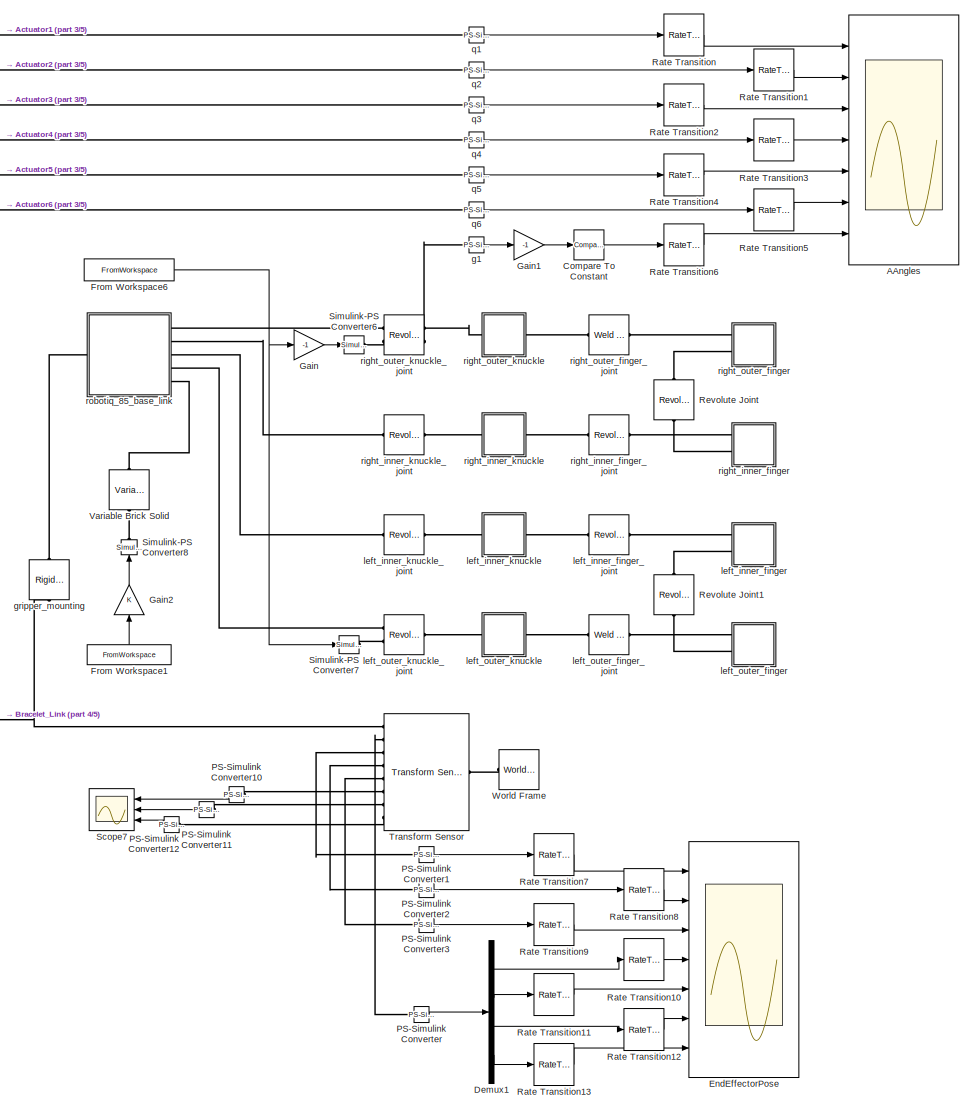
[diagram: root canvas - part 1/5, top right region]
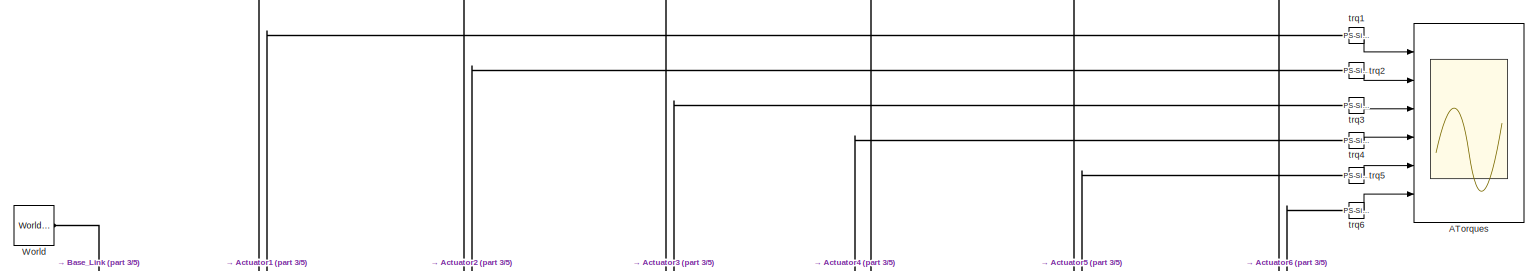
[diagram: root canvas - part 2/5, top center region]
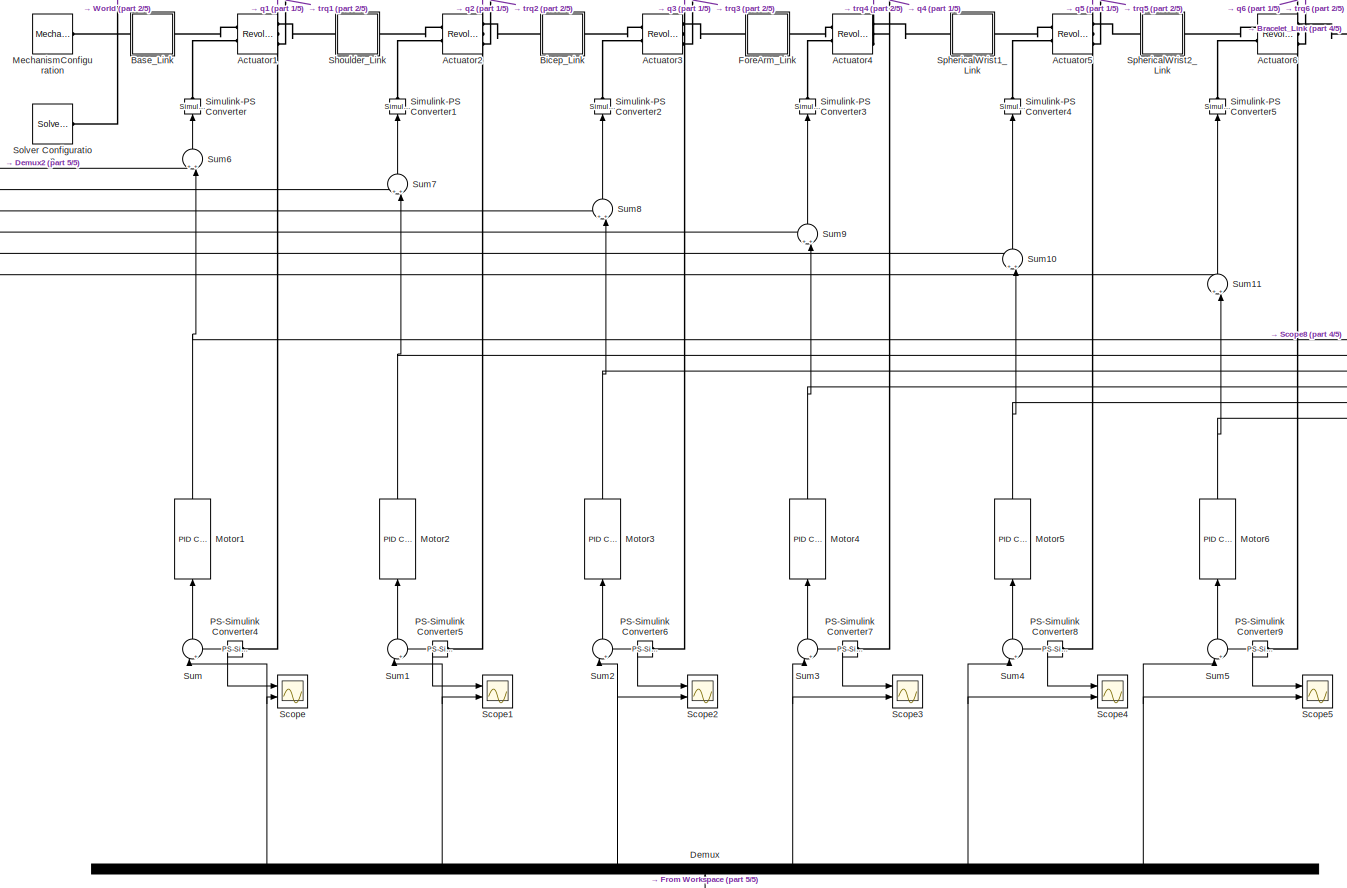
[diagram: root canvas - part 3/5, central region]
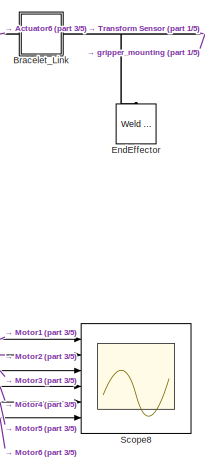
[diagram: root canvas - part 4/5, central region]
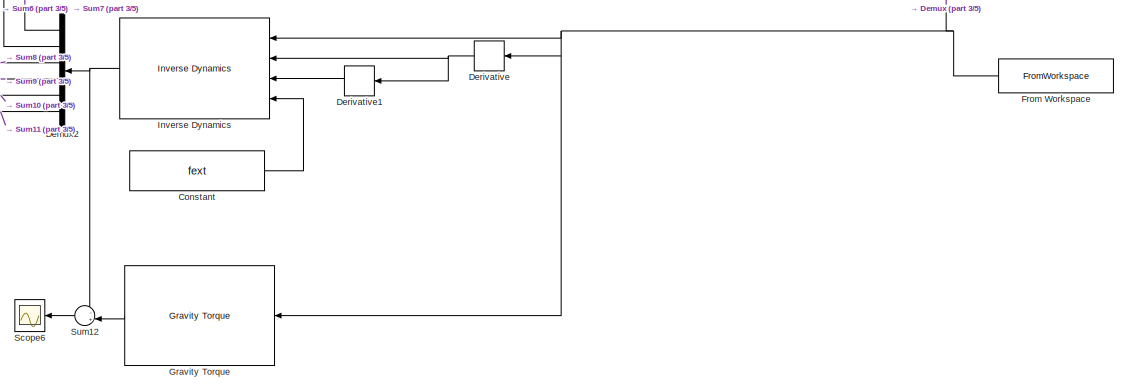
[diagram: root canvas - part 5/5, bottom left region]
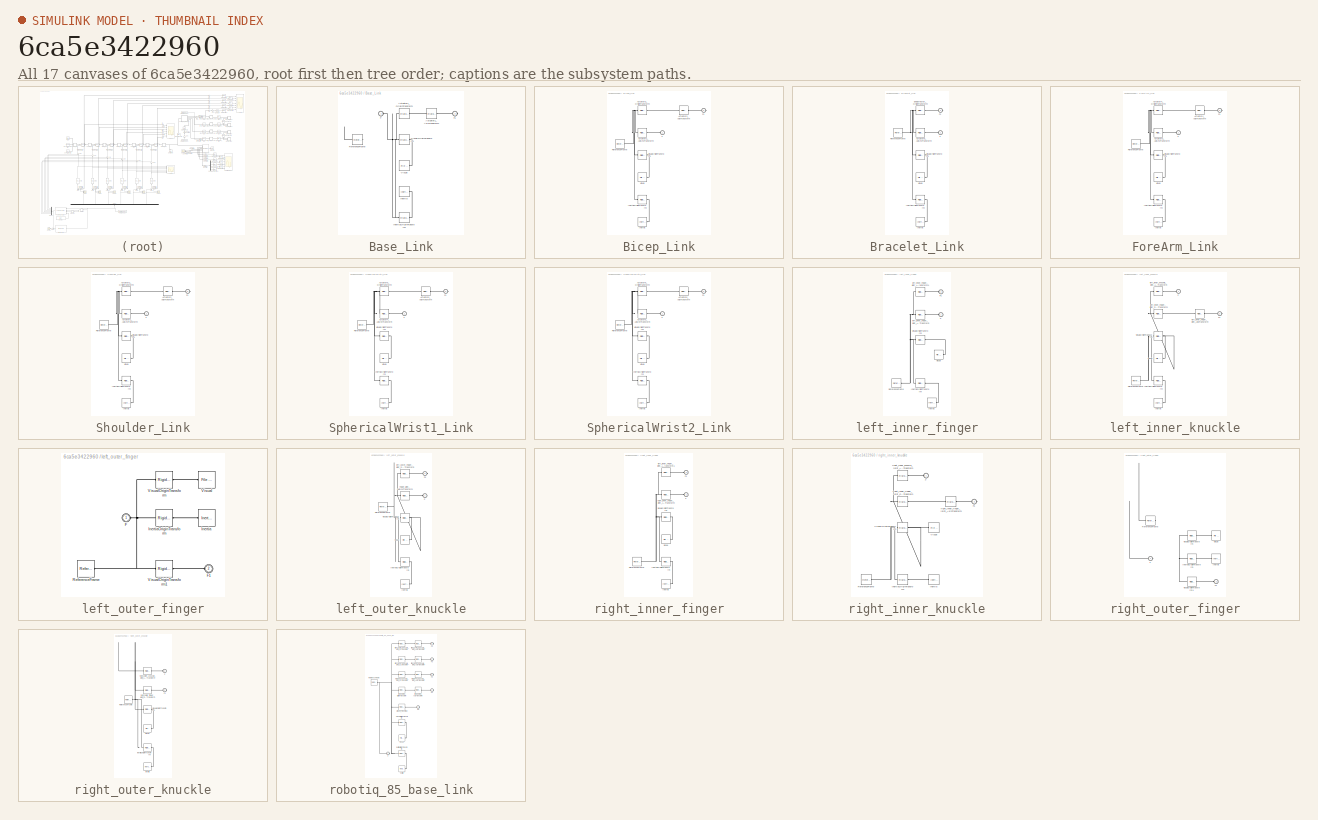
[diagram: thumbnail index - all 17 canvases of the model, root first then tree order]
MODEL slx_6ca5e3422960
KIND model
CONFIG AbsTol = auto
CONFIG EnableMultiTasking = off
CONFIG FixedStep = dt/10
CONFIG MaxStep = dt/2
CONFIG MinStep = auto
CONFIG RelTol = 1e-3
CONFIG SampleTimeConstraint = Unconstrained
CONFIG SolverName = FixedStepAuto
CONFIG StartTime = 0.0
CONFIG StopTime = tf
BLOCK [Scope] AAngles
  Floating = off
  NumInputPorts = 7
  Ports = [7]
  ScopeSpecificationString = Simulink.scopes.TimeScopeBlockCfg('CurrentConfiguration', extmgr.ConfigurationSet(extmgr.Configuration('Core','General UI',true),extmgr.Configuration('Core','Source UI',true),extmgr.Configuration('Sources','WiredSimulink',true,'DataLoggingVariableName','Actuator_Angles','DataLogging',true,'DataLoggingSaveFormat','StructureWithTime'),extmgr.Configuration('Visuals','Time Domain',true,'SerializedDisp...<+6317ch>
BLOCK [Scope] ATorques
  Floating = off
  NumInputPorts = 6
  Ports = [6]
  ScopeSpecificationString = Simulink.scopes.TimeScopeBlockCfg('CurrentConfiguration', extmgr.ConfigurationSet(extmgr.Configuration('Core','General UI',true),extmgr.Configuration('Core','Source UI',true),extmgr.Configuration('Sources','WiredSimulink',true,'DataLoggingVariableName','Actuator_Torques','DataLogging',true,'DataLoggingSaveFormat','StructureWithTime'),extmgr.Configuration('Visuals','Time Domain',true,'SerializedDis...<+4941ch>
BLOCK [Reference] Actuator1  REF=sm_lib/Joints/Revolute Joint
  Ports = [0, 0, 0, 0, 0, 2, 3]
  SourceBlock = sm_lib/Joints/Revolute Joint
  SourceProductBaseCode = MS
  SourceType = Revolute Joint
BLOCK [Reference] Actuator2  REF=sm_lib/Joints/Revolute Joint
  Ports = [0, 0, 0, 0, 0, 2, 3]
  SourceBlock = sm_lib/Joints/Revolute Joint
  SourceProductBaseCode = MS
  SourceType = Revolute Joint
BLOCK [Reference] Actuator3  REF=sm_lib/Joints/Revolute Joint
  Ports = [0, 0, 0, 0, 0, 2, 3]
  SourceBlock = sm_lib/Joints/Revolute Joint
  SourceProductBaseCode = MS
  SourceType = Revolute Joint
BLOCK [Reference] Actuator4  REF=sm_lib/Joints/Revolute Joint
  Ports = [0, 0, 0, 0, 0, 2, 3]
  SourceBlock = sm_lib/Joints/Revolute Joint
  SourceProductBaseCode = MS
  SourceType = Revolute Joint
BLOCK [Reference] Actuator5  REF=sm_lib/Joints/Revolute Joint
  Ports = [0, 0, 0, 0, 0, 2, 3]
  SourceBlock = sm_lib/Joints/Revolute Joint
  SourceProductBaseCode = MS
  SourceType = Revolute Joint
BLOCK [Reference] Actuator6  REF=sm_lib/Joints/Revolute Joint
  Ports = [0, 0, 0, 0, 0, 2, 3]
  SourceBlock = sm_lib/Joints/Revolute Joint
  SourceProductBaseCode = MS
  SourceType = Revolute Joint
BLOCK [SubSystem] Base_Link
  Ports = [0, 0, 0, 0, 0, 1, 1]
  RequestExecContextInheritance = off
BLOCK [Reference] Base_Link/Actuator1_AxisTransform  REF=sm_lib/Frames and
Transforms/Rigid
Transform
  Ports = [0, 0, 0, 0, 0, 1, 1]
  SourceBlock = sm_lib/Frames and\nTransforms/Rigid\nTransform
  SourceProductBaseCode = MS
  SourceType = Rigid\nTransform
BLOCK [Reference] Base_Link/Actuator1_OriginTransform  REF=sm_lib/Frames and
Transforms/Rigid
Transform
  Ports = [0, 0, 0, 0, 0, 1, 1]
  SourceBlock = sm_lib/Frames and\nTransforms/Rigid\nTransform
  SourceProductBaseCode = MS
  SourceType = Rigid\nTransform
BLOCK [PMIOPort] Base_Link/F
  Side = Left
BLOCK [PMIOPort] Base_Link/F1
  Port = 2
  Side = Right
BLOCK [Reference] Base_Link/Inertia  REF=sm_lib/Body Elements/Inertia
  Ports = [0, 0, 0, 0, 0, 0, 1]
  SourceBlock = sm_lib/Body Elements/Inertia
  SourceProductBaseCode = MS
  SourceType = Inertia
BLOCK [Reference] Base_Link/InertiaOriginTransform  REF=sm_lib/Frames and
Transforms/Rigid
Transform
  Ports = [0, 0, 0, 0, 0, 1, 1]
  SourceBlock = sm_lib/Frames and\nTransforms/Rigid\nTransform
  SourceProductBaseCode = MS
  SourceType = Rigid\nTransform
BLOCK [Reference] Base_Link/ReferenceFrame  REF=sm_lib/Frames and
Transforms/Reference
Frame
  Ports = [0, 0, 0, 0, 0, 0, 1]
  SourceBlock = sm_lib/Frames and\nTransforms/Reference\nFrame
  SourceProductBaseCode = MS
  SourceType = Reference\nFrame
BLOCK [Reference] Base_Link/Visual  REF=sm_lib/Body Elements/File Solid
  Ports = [0, 0, 0, 0, 0, 0, 1]
  SourceBlock = sm_lib/Body Elements/File Solid
  SourceProductBaseCode = MS
  SourceType = File Solid
BLOCK [Reference] Base_Link/VisualOriginTransform  REF=sm_lib/Frames and
Transforms/Rigid
Transform
  Ports = [0, 0, 0, 0, 0, 1, 1]
  SourceBlock = sm_lib/Frames and\nTransforms/Rigid\nTransform
  SourceProductBaseCode = MS
  SourceType = Rigid\nTransform
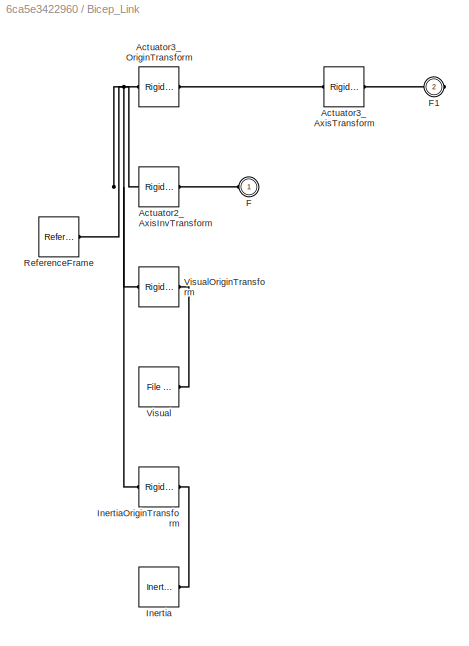
BLOCK [SubSystem] Bicep_Link
  Ports = [0, 0, 0, 0, 0, 1, 1]
  RequestExecContextInheritance = off
BLOCK [Reference] Bicep_Link/Actuator2_AxisInvTransform  REF=sm_lib/Frames and
Transforms/Rigid
Transform
  Ports = [0, 0, 0, 0, 0, 1, 1]
  SourceBlock = sm_lib/Frames and\nTransforms/Rigid\nTransform
  SourceProductBaseCode = MS
  SourceType = Rigid\nTransform
BLOCK [Reference] Bicep_Link/Actuator3_AxisTransform  REF=sm_lib/Frames and
Transforms/Rigid
Transform
  Ports = [0, 0, 0, 0, 0, 1, 1]
  SourceBlock = sm_lib/Frames and\nTransforms/Rigid\nTransform
  SourceProductBaseCode = MS
  SourceType = Rigid\nTransform
BLOCK [Reference] Bicep_Link/Actuator3_OriginTransform  REF=sm_lib/Frames and
Transforms/Rigid
Transform
  Ports = [0, 0, 0, 0, 0, 1, 1]
  SourceBlock = sm_lib/Frames and\nTransforms/Rigid\nTransform
  SourceProductBaseCode = MS
  SourceType = Rigid\nTransform
BLOCK [PMIOPort] Bicep_Link/F
  Side = Left
BLOCK [PMIOPort] Bicep_Link/F1
  Port = 2
  Side = Right
BLOCK [Reference] Bicep_Link/Inertia  REF=sm_lib/Body Elements/Inertia
  Ports = [0, 0, 0, 0, 0, 0, 1]
  SourceBlock = sm_lib/Body Elements/Inertia
  SourceProductBaseCode = MS
  SourceType = Inertia
BLOCK [Reference] Bicep_Link/InertiaOriginTransform  REF=sm_lib/Frames and
Transforms/Rigid
Transform
  Ports = [0, 0, 0, 0, 0, 1, 1]
  SourceBlock = sm_lib/Frames and\nTransforms/Rigid\nTransform
  SourceProductBaseCode = MS
  SourceType = Rigid\nTransform
BLOCK [Reference] Bicep_Link/ReferenceFrame  REF=sm_lib/Frames and
Transforms/Reference
Frame
  Ports = [0, 0, 0, 0, 0, 0, 1]
  SourceBlock = sm_lib/Frames and\nTransforms/Reference\nFrame
  SourceProductBaseCode = MS
  SourceType = Reference\nFrame
BLOCK [Reference] Bicep_Link/Visual  REF=sm_lib/Body Elements/File Solid
  Ports = [0, 0, 0, 0, 0, 0, 1]
  SourceBlock = sm_lib/Body Elements/File Solid
  SourceProductBaseCode = MS
  SourceType = File Solid
BLOCK [Reference] Bicep_Link/VisualOriginTransform  REF=sm_lib/Frames and
Transforms/Rigid
Transform
  Ports = [0, 0, 0, 0, 0, 1, 1]
  SourceBlock = sm_lib/Frames and\nTransforms/Rigid\nTransform
  SourceProductBaseCode = MS
  SourceType = Rigid\nTransform
BLOCK [SubSystem] Bracelet_Link
  Ports = [0, 0, 0, 0, 0, 1, 1]
  RequestExecContextInheritance = off
BLOCK [Reference] Bracelet_Link/Actuator6_AxisInvTransform  REF=sm_lib/Frames and
Transforms/Rigid
Transform
  Ports = [0, 0, 0, 0, 0, 1, 1]
  SourceBlock = sm_lib/Frames and\nTransforms/Rigid\nTransform
  SourceProductBaseCode = MS
  SourceType = Rigid\nTransform
BLOCK [Reference] Bracelet_Link/EndEffector_OriginTransform  REF=sm_lib/Frames and
Transforms/Rigid
Transform
  Ports = [0, 0, 0, 0, 0, 1, 1]
  SourceBlock = sm_lib/Frames and\nTransforms/Rigid\nTransform
  SourceProductBaseCode = MS
  SourceType = Rigid\nTransform
BLOCK [PMIOPort] Bracelet_Link/F
  Side = Left
BLOCK [PMIOPort] Bracelet_Link/F1
  Port = 2
  Side = Right
BLOCK [Reference] Bracelet_Link/Inertia  REF=sm_lib/Body Elements/Inertia
  Ports = [0, 0, 0, 0, 0, 0, 1]
  SourceBlock = sm_lib/Body Elements/Inertia
  SourceProductBaseCode = MS
  SourceType = Inertia
BLOCK [Reference] Bracelet_Link/InertiaOriginTransform  REF=sm_lib/Frames and
Transforms/Rigid
Transform
  Ports = [0, 0, 0, 0, 0, 1, 1]
  SourceBlock = sm_lib/Frames and\nTransforms/Rigid\nTransform
  SourceProductBaseCode = MS
  SourceType = Rigid\nTransform
BLOCK [Reference] Bracelet_Link/ReferenceFrame  REF=sm_lib/Frames and
Transforms/Reference
Frame
  Ports = [0, 0, 0, 0, 0, 0, 1]
  SourceBlock = sm_lib/Frames and\nTransforms/Reference\nFrame
  SourceProductBaseCode = MS
  SourceType = Reference\nFrame
BLOCK [Reference] Bracelet_Link/Visual  REF=sm_lib/Body Elements/File Solid
  Ports = [0, 0, 0, 0, 0, 0, 1]
  SourceBlock = sm_lib/Body Elements/File Solid
  SourceProductBaseCode = MS
  SourceType = File Solid
BLOCK [Reference] Bracelet_Link/VisualOriginTransform  REF=sm_lib/Frames and
Transforms/Rigid
Transform
  Ports = [0, 0, 0, 0, 0, 1, 1]
  SourceBlock = sm_lib/Frames and\nTransforms/Rigid\nTransform
  SourceProductBaseCode = MS
  SourceType = Rigid\nTransform
BLOCK [Reference] Compare To Constant  REF=simulink/Logic and Bit
Operations/Compare
To Constant
  Ports = [1, 1]
  SourceBlock = simulink/Logic and Bit\nOperations/Compare\nTo Constant
  SourceProductBaseCode = SL
  SourceType = Compare To Constant
BLOCK [Constant] Constant
  Value = fext
BLOCK [Demux] Demux
  NameLocation = right
  Outputs = 6
  Ports = [1, 6]
BLOCK [Demux] Demux1
  Ports = [1, 4]
BLOCK [Demux] Demux2
  NameLocation = top
  Outputs = 6
  Ports = [1, 6]
BLOCK [Derivative] Derivative
  NameLocation = top
BLOCK [Derivative] Derivative1
  NameLocation = top
BLOCK [Reference] EndEffector  REF=sm_lib/Joints/Weld Joint
  NameLocation = left
  Ports = [0, 0, 0, 0, 0, 1, 1]
  SourceBlock = sm_lib/Joints/Weld Joint
  SourceProductBaseCode = MS
  SourceType = Weld Joint
BLOCK [Scope] EndEffectorPose
  Floating = off
  NumInputPorts = 7
  Ports = [7]
  ScopeSpecificationString = Simulink.scopes.TimeScopeBlockCfg('CurrentConfiguration', extmgr.ConfigurationSet(extmgr.Configuration('Core','General UI',true),extmgr.Configuration('Core','Source UI',true),extmgr.Configuration('Sources','WiredSimulink',true,'DataLoggingVariableName','EndEffectorPose','DataLogging',true,'DataLoggingSaveFormat','StructureWithTime'),extmgr.Configuration('Visuals','Time Domain',true,'SerializedDisp...<+1473ch>
BLOCK [SubSystem] ForeArm_Link
  Ports = [0, 0, 0, 0, 0, 1, 1]
  RequestExecContextInheritance = off
BLOCK [Reference] ForeArm_Link/Actuator3_AxisInvTransform  REF=sm_lib/Frames and
Transforms/Rigid
Transform
  Ports = [0, 0, 0, 0, 0, 1, 1]
  SourceBlock = sm_lib/Frames and\nTransforms/Rigid\nTransform
  SourceProductBaseCode = MS
  SourceType = Rigid\nTransform
BLOCK [Reference] ForeArm_Link/Actuator4_AxisTransform  REF=sm_lib/Frames and
Transforms/Rigid
Transform
  Ports = [0, 0, 0, 0, 0, 1, 1]
  SourceBlock = sm_lib/Frames and\nTransforms/Rigid\nTransform
  SourceProductBaseCode = MS
  SourceType = Rigid\nTransform
BLOCK [Reference] ForeArm_Link/Actuator4_OriginTransform  REF=sm_lib/Frames and
Transforms/Rigid
Transform
  Ports = [0, 0, 0, 0, 0, 1, 1]
  SourceBlock = sm_lib/Frames and\nTransforms/Rigid\nTransform
  SourceProductBaseCode = MS
  SourceType = Rigid\nTransform
BLOCK [PMIOPort] ForeArm_Link/F
  Side = Left
BLOCK [PMIOPort] ForeArm_Link/F1
  Port = 2
  Side = Right
BLOCK [Reference] ForeArm_Link/Inertia  REF=sm_lib/Body Elements/Inertia
  Ports = [0, 0, 0, 0, 0, 0, 1]
  SourceBlock = sm_lib/Body Elements/Inertia
  SourceProductBaseCode = MS
  SourceType = Inertia
BLOCK [Reference] ForeArm_Link/InertiaOriginTransform  REF=sm_lib/Frames and
Transforms/Rigid
Transform
  Ports = [0, 0, 0, 0, 0, 1, 1]
  SourceBlock = sm_lib/Frames and\nTransforms/Rigid\nTransform
  SourceProductBaseCode = MS
  SourceType = Rigid\nTransform
BLOCK [Reference] ForeArm_Link/ReferenceFrame  REF=sm_lib/Frames and
Transforms/Reference
Frame
  Ports = [0, 0, 0, 0, 0, 0, 1]
  SourceBlock = sm_lib/Frames and\nTransforms/Reference\nFrame
  SourceProductBaseCode = MS
  SourceType = Reference\nFrame
BLOCK [Reference] ForeArm_Link/Visual  REF=sm_lib/Body Elements/File Solid
  Ports = [0, 0, 0, 0, 0, 0, 1]
  SourceBlock = sm_lib/Body Elements/File Solid
  SourceProductBaseCode = MS
  SourceType = File Solid
BLOCK [Reference] ForeArm_Link/VisualOriginTransform  REF=sm_lib/Frames and
Transforms/Rigid
Transform
  Ports = [0, 0, 0, 0, 0, 1, 1]
  SourceBlock = sm_lib/Frames and\nTransforms/Rigid\nTransform
  SourceProductBaseCode = MS
  SourceType = Rigid\nTransform
BLOCK [FromWorkspace] From Workspace
  NameLocation = top
  OutputAfterFinalValue = Holding final value
  VariableName = WayPoints(:, 1:7)
BLOCK [FromWorkspace] From Workspace1
  NameLocation = right
  VariableName = MassPoints
BLOCK [FromWorkspace] From Workspace6
  OutputAfterFinalValue = Holding final value
  VariableName = WayPoints(:,[1 8])
BLOCK [Gain] Gain
  Gain = -1
BLOCK [Gain] Gain1
  Gain = -1
BLOCK [Gain] Gain2
  NameLocation = right
BLOCK [Reference] Gravity Torque  REF=robotmaniplib/Gravity Torque
  Commented = on
  NameLocation = top
  Ports = [1, 1]
  SourceBlock = robotmaniplib/Gravity Torque
  SourceProductBaseCode = RO
  SourceType = Gravity Torque
BLOCK [Reference] Inverse Dynamics  REF=robotmaniplib/Inverse Dynamics
  NameLocation = top
  Ports = [4, 1]
  SourceBlock = robotmaniplib/Inverse Dynamics
  SourceProductBaseCode = RO
  SourceType = Inverse Dynamics
BLOCK [Reference] MechanismConfiguration  REF=sm_lib/Utilities/Mechanism
Configuration
  Ports = [0, 0, 0, 0, 0, 0, 1]
  SourceBlock = sm_lib/Utilities/Mechanism\nConfiguration
  SourceProductBaseCode = MS
  SourceType = Mechanism\nConfiguration
BLOCK [Reference] Motor1  REF=pid_lib/PID Controller
  NameLocation = right
  Ports = [1, 1]
  SourceBlock = pid_lib/PID Controller
  SourceProductBaseCode = SL
  SourceType = PID 1dof
BLOCK [Reference] Motor2  REF=pid_lib/PID Controller
  NameLocation = right
  Ports = [1, 1]
  SourceBlock = pid_lib/PID Controller
  SourceProductBaseCode = SL
  SourceType = PID 1dof
BLOCK [Reference] Motor3  REF=pid_lib/PID Controller
  NameLocation = right
  Ports = [1, 1]
  SourceBlock = pid_lib/PID Controller
  SourceProductBaseCode = SL
  SourceType = PID 1dof
BLOCK [Reference] Motor4  REF=pid_lib/PID Controller
  NameLocation = right
  Ports = [1, 1]
  SourceBlock = pid_lib/PID Controller
  SourceProductBaseCode = SL
  SourceType = PID 1dof
BLOCK [Reference] Motor5  REF=pid_lib/PID Controller
  NameLocation = right
  Ports = [1, 1]
  SourceBlock = pid_lib/PID Controller
  SourceProductBaseCode = SL
  SourceType = PID 1dof
BLOCK [Reference] Motor6  REF=pid_lib/PID Controller
  NameLocation = right
  Ports = [1, 1]
  SourceBlock = pid_lib/PID Controller
  SourceProductBaseCode = SL
  SourceType = PID 1dof
BLOCK [Reference] PS-Simulink Converter  REF=nesl_utility/PS-Simulink
Converter
  Ports = [0, 1, 0, 0, 0, 1]
  SourceBlock = nesl_utility/PS-Simulink\nConverter
  SourceProductBaseCode = PW,SS
  SourceType = PS-Simulink\nConverter
BLOCK [Reference] PS-Simulink Converter1  REF=nesl_utility/PS-Simulink
Converter
  Ports = [0, 1, 0, 0, 0, 1]
  SourceBlock = nesl_utility/PS-Simulink\nConverter
  SourceProductBaseCode = PW,SS
  SourceType = PS-Simulink\nConverter
BLOCK [Reference] PS-Simulink Converter10  REF=nesl_utility/PS-Simulink
Converter
  NameLocation = top
  Ports = [0, 1, 0, 0, 0, 1]
  SourceBlock = nesl_utility/PS-Simulink\nConverter
  SourceProductBaseCode = PW,SS
  SourceType = PS-Simulink\nConverter
BLOCK [Reference] PS-Simulink Converter11  REF=nesl_utility/PS-Simulink
Converter
  NameLocation = top
  Ports = [0, 1, 0, 0, 0, 1]
  SourceBlock = nesl_utility/PS-Simulink\nConverter
  SourceProductBaseCode = PW,SS
  SourceType = PS-Simulink\nConverter
BLOCK [Reference] PS-Simulink Converter12  REF=nesl_utility/PS-Simulink
Converter
  NameLocation = top
  Ports = [0, 1, 0, 0, 0, 1]
  SourceBlock = nesl_utility/PS-Simulink\nConverter
  SourceProductBaseCode = PW,SS
  SourceType = PS-Simulink\nConverter
BLOCK [Reference] PS-Simulink Converter2  REF=nesl_utility/PS-Simulink
Converter
  Ports = [0, 1, 0, 0, 0, 1]
  SourceBlock = nesl_utility/PS-Simulink\nConverter
  SourceProductBaseCode = PW,SS
  SourceType = PS-Simulink\nConverter
BLOCK [Reference] PS-Simulink Converter3  REF=nesl_utility/PS-Simulink
Converter
  Ports = [0, 1, 0, 0, 0, 1]
  SourceBlock = nesl_utility/PS-Simulink\nConverter
  SourceProductBaseCode = PW,SS
  SourceType = PS-Simulink\nConverter
BLOCK [Reference] PS-Simulink Converter4  REF=nesl_utility/PS-Simulink
Converter
  NameLocation = top
  Ports = [0, 1, 0, 0, 0, 1]
  SourceBlock = nesl_utility/PS-Simulink\nConverter
  SourceProductBaseCode = PW,SS
  SourceType = PS-Simulink\nConverter
BLOCK [Reference] PS-Simulink Converter5  REF=nesl_utility/PS-Simulink
Converter
  NameLocation = top
  Ports = [0, 1, 0, 0, 0, 1]
  SourceBlock = nesl_utility/PS-Simulink\nConverter
  SourceProductBaseCode = PW,SS
  SourceType = PS-Simulink\nConverter
BLOCK [Reference] PS-Simulink Converter6  REF=nesl_utility/PS-Simulink
Converter
  NameLocation = top
  Ports = [0, 1, 0, 0, 0, 1]
  SourceBlock = nesl_utility/PS-Simulink\nConverter
  SourceProductBaseCode = PW,SS
  SourceType = PS-Simulink\nConverter
BLOCK [Reference] PS-Simulink Converter7  REF=nesl_utility/PS-Simulink
Converter
  NameLocation = top
  Ports = [0, 1, 0, 0, 0, 1]
  SourceBlock = nesl_utility/PS-Simulink\nConverter
  SourceProductBaseCode = PW,SS
  SourceType = PS-Simulink\nConverter
BLOCK [Reference] PS-Simulink Converter8  REF=nesl_utility/PS-Simulink
Converter
  NameLocation = top
  Ports = [0, 1, 0, 0, 0, 1]
  SourceBlock = nesl_utility/PS-Simulink\nConverter
  SourceProductBaseCode = PW,SS
  SourceType = PS-Simulink\nConverter
BLOCK [Reference] PS-Simulink Converter9  REF=nesl_utility/PS-Simulink
Converter
  NameLocation = top
  Ports = [0, 1, 0, 0, 0, 1]
  SourceBlock = nesl_utility/PS-Simulink\nConverter
  SourceProductBaseCode = PW,SS
  SourceType = PS-Simulink\nConverter
BLOCK [RateTransition] Rate Transition
  Integrity = off
  OutPortSampleTime = dt
  OutPortSampleTimeMultiple = 10
BLOCK [RateTransition] Rate Transition1
  Integrity = off
  OutPortSampleTime = dt
  OutPortSampleTimeMultiple = 10
BLOCK [RateTransition] Rate Transition10
  Integrity = off
  OutPortSampleTime = dt
  OutPortSampleTimeMultiple = 10
BLOCK [RateTransition] Rate Transition11
  Integrity = off
  OutPortSampleTime = dt
  OutPortSampleTimeMultiple = 10
BLOCK [RateTransition] Rate Transition12
  Integrity = off
  OutPortSampleTime = dt
  OutPortSampleTimeMultiple = 10
BLOCK [RateTransition] Rate Transition13
  Integrity = off
  OutPortSampleTime = dt
  OutPortSampleTimeMultiple = 10
BLOCK [RateTransition] Rate Transition2
  Integrity = off
  OutPortSampleTime = dt
  OutPortSampleTimeMultiple = 10
BLOCK [RateTransition] Rate Transition3
  Integrity = off
  OutPortSampleTime = dt
  OutPortSampleTimeMultiple = 10
BLOCK [RateTransition] Rate Transition4
  Integrity = off
  OutPortSampleTime = dt
  OutPortSampleTimeMultiple = 10
BLOCK [RateTransition] Rate Transition5
  Integrity = off
  OutPortSampleTime = dt
  OutPortSampleTimeMultiple = 10
BLOCK [RateTransition] Rate Transition6
  Integrity = off
  OutPortSampleTime = dt
  OutPortSampleTimeMultiple = 10
BLOCK [RateTransition] Rate Transition7
  Integrity = off
  OutPortSampleTime = dt
  OutPortSampleTimeMultiple = 10
BLOCK [RateTransition] Rate Transition8
  Integrity = off
  OutPortSampleTime = dt
  OutPortSampleTimeMultiple = 10
BLOCK [RateTransition] Rate Transition9
  Integrity = off
  OutPortSampleTime = dt
  OutPortSampleTimeMultiple = 10
BLOCK [Reference] Revolute Joint  REF=sm_lib/Joints/Revolute Joint
  NameLocation = left
  Ports = [0, 0, 0, 0, 0, 1, 1]
  SourceBlock = sm_lib/Joints/Revolute Joint
  SourceProductBaseCode = MS
  SourceType = Revolute Joint
BLOCK [Reference] Revolute Joint1  REF=sm_lib/Joints/Revolute Joint
  NameLocation = right
  Ports = [0, 0, 0, 0, 0, 1, 1]
  SourceBlock = sm_lib/Joints/Revolute Joint
  SourceProductBaseCode = MS
  SourceType = Revolute Joint
BLOCK [Scope] Scope
  Floating = off
  NumInputPorts = 2
  Ports = [2]
  ScopeSpecificationString = Simulink.scopes.TimeScopeBlockCfg('CurrentConfiguration', extmgr.ConfigurationSet(extmgr.Configuration('Core','General UI',true),extmgr.Configuration('Core','Source UI',true),extmgr.Configuration('Sources','WiredSimulink',true,'DataLoggingVariableName','ScopeData1'),extmgr.Configuration('Visuals','Time Domain',true,'SerializedDisplays',{struct('MinYLimReal','-1.89278','MaxYLimReal','7.40598','YLab...<+1462ch>
BLOCK [Scope] Scope1
  Floating = off
  NumInputPorts = 2
  Ports = [2]
  ScopeSpecificationString = Simulink.scopes.TimeScopeBlockCfg('CurrentConfiguration', extmgr.ConfigurationSet(extmgr.Configuration('Core','General UI',true),extmgr.Configuration('Core','Source UI',true),extmgr.Configuration('Sources','WiredSimulink',true,'DataLoggingVariableName','ScopeData2'),extmgr.Configuration('Visuals','Time Domain',true,'SerializedDisplays',{struct('MinYLimReal','-1.89278','MaxYLimReal','7.40598','YLab...<+1462ch>
BLOCK [Scope] Scope2
  Floating = off
  NumInputPorts = 2
  Ports = [2]
  ScopeSpecificationString = Simulink.scopes.TimeScopeBlockCfg('CurrentConfiguration', extmgr.ConfigurationSet(extmgr.Configuration('Core','General UI',true),extmgr.Configuration('Core','Source UI',true),extmgr.Configuration('Sources','WiredSimulink',true,'DataLoggingVariableName','ScopeData3'),extmgr.Configuration('Visuals','Time Domain',true,'SerializedDisplays',{struct('MinYLimReal','-1.89278','MaxYLimReal','7.40598','YLab...<+1462ch>
BLOCK [Scope] Scope3
  Floating = off
  NumInputPorts = 2
  Ports = [2]
  ScopeSpecificationString = Simulink.scopes.TimeScopeBlockCfg('CurrentConfiguration', extmgr.ConfigurationSet(extmgr.Configuration('Core','General UI',true),extmgr.Configuration('Core','Source UI',true),extmgr.Configuration('Sources','WiredSimulink',true,'DataLoggingVariableName','ScopeData4'),extmgr.Configuration('Visuals','Time Domain',true,'SerializedDisplays',{struct('MinYLimReal','-1.89278','MaxYLimReal','7.40598','YLab...<+1462ch>
BLOCK [Scope] Scope4
  Floating = off
  NumInputPorts = 2
  Ports = [2]
  ScopeSpecificationString = Simulink.scopes.TimeScopeBlockCfg('CurrentConfiguration', extmgr.ConfigurationSet(extmgr.Configuration('Core','General UI',true),extmgr.Configuration('Core','Source UI',true),extmgr.Configuration('Sources','WiredSimulink',true,'DataLoggingVariableName','ScopeData5'),extmgr.Configuration('Visuals','Time Domain',true,'SerializedDisplays',{struct('MinYLimReal','-0.04801','MaxYLimReal','0.4321','YLabe...<+1433ch>
BLOCK [Scope] Scope5
  Floating = off
  NumInputPorts = 2
  Ports = [2]
  ScopeSpecificationString = Simulink.scopes.TimeScopeBlockCfg('CurrentConfiguration', extmgr.ConfigurationSet(extmgr.Configuration('Core','General UI',true),extmgr.Configuration('Core','Source UI',true),extmgr.Configuration('Sources','WiredSimulink',true,'DataLoggingVariableName','ScopeData6'),extmgr.Configuration('Visuals','Time Domain',true,'SerializedDisplays',{struct('MinYLimReal','-1.89278','MaxYLimReal','7.40598','YLab...<+1462ch>
BLOCK [Scope] Scope6
  Commented = on
  Floating = off
  NameLocation = top
  NumInputPorts = 1
  Ports = [1]
  ScopeSpecificationString = Simulink.scopes.TimeScopeBlockCfg('CurrentConfiguration', extmgr.ConfigurationSet(extmgr.Configuration('Core','General UI',true),extmgr.Configuration('Core','Source UI',true),extmgr.Configuration('Sources','WiredSimulink',true,'DataLoggingVariableName','ScopeData1'),extmgr.Configuration('Visuals','Time Domain',true,'SerializedDisplays',{struct('MinYLimReal','-1.00000','MaxYLimReal','1.00000','YLab...<+1443ch>
BLOCK [Scope] Scope7
  Floating = off
  NameLocation = top
  NumInputPorts = 3
  Ports = [3]
  ScopeSpecificationString = Simulink.scopes.TimeScopeBlockCfg('CurrentConfiguration', extmgr.ConfigurationSet(extmgr.Configuration('Core','General UI',true),extmgr.Configuration('Core','Source UI',true),extmgr.Configuration('Sources','WiredSimulink',true,'DataLoggingVariableName','ScopeData1'),extmgr.Configuration('Visuals','Time Domain',true,'SerializedDisplays',{struct('MinYLimReal','-8.17603','MaxYLimReal','5.99764','YLab...<+1488ch>
BLOCK [Scope] Scope8
  Floating = off
  NumInputPorts = 6
  Ports = [6]
  ScopeSpecificationString = Simulink.scopes.TimeScopeBlockCfg('CurrentConfiguration', extmgr.ConfigurationSet(extmgr.Configuration('Core','General UI',true),extmgr.Configuration('Core','Source UI',true),extmgr.Configuration('Sources','WiredSimulink',true,'DataLoggingVariableName','ScopeData2'),extmgr.Configuration('Visuals','Time Domain',true,'SerializedDisplays',{struct('MinYLimReal','-19.14101','MaxYLimReal','21.08155','YL...<+1443ch>
BLOCK [SubSystem] Shoulder_Link
  Ports = [0, 0, 0, 0, 0, 1, 1]
  RequestExecContextInheritance = off
BLOCK [Reference] Shoulder_Link/Actuator1_AxisInvTransform  REF=sm_lib/Frames and
Transforms/Rigid
Transform
  Ports = [0, 0, 0, 0, 0, 1, 1]
  SourceBlock = sm_lib/Frames and\nTransforms/Rigid\nTransform
  SourceProductBaseCode = MS
  SourceType = Rigid\nTransform
BLOCK [Reference] Shoulder_Link/Actuator2_AxisTransform  REF=sm_lib/Frames and
Transforms/Rigid
Transform
  Ports = [0, 0, 0, 0, 0, 1, 1]
  SourceBlock = sm_lib/Frames and\nTransforms/Rigid\nTransform
  SourceProductBaseCode = MS
  SourceType = Rigid\nTransform
BLOCK [Reference] Shoulder_Link/Actuator2_OriginTransform  REF=sm_lib/Frames and
Transforms/Rigid
Transform
  Ports = [0, 0, 0, 0, 0, 1, 1]
  SourceBlock = sm_lib/Frames and\nTransforms/Rigid\nTransform
  SourceProductBaseCode = MS
  SourceType = Rigid\nTransform
BLOCK [PMIOPort] Shoulder_Link/F
  Side = Left
BLOCK [PMIOPort] Shoulder_Link/F1
  Port = 2
  Side = Right
BLOCK [Reference] Shoulder_Link/Inertia  REF=sm_lib/Body Elements/Inertia
  Ports = [0, 0, 0, 0, 0, 0, 1]
  SourceBlock = sm_lib/Body Elements/Inertia
  SourceProductBaseCode = MS
  SourceType = Inertia
BLOCK [Reference] Shoulder_Link/InertiaOriginTransform  REF=sm_lib/Frames and
Transforms/Rigid
Transform
  Ports = [0, 0, 0, 0, 0, 1, 1]
  SourceBlock = sm_lib/Frames and\nTransforms/Rigid\nTransform
  SourceProductBaseCode = MS
  SourceType = Rigid\nTransform
BLOCK [Reference] Shoulder_Link/ReferenceFrame  REF=sm_lib/Frames and
Transforms/Reference
Frame
  Ports = [0, 0, 0, 0, 0, 0, 1]
  SourceBlock = sm_lib/Frames and\nTransforms/Reference\nFrame
  SourceProductBaseCode = MS
  SourceType = Reference\nFrame
BLOCK [Reference] Shoulder_Link/Visual  REF=sm_lib/Body Elements/File Solid
  Ports = [0, 0, 0, 0, 0, 0, 1]
  SourceBlock = sm_lib/Body Elements/File Solid
  SourceProductBaseCode = MS
  SourceType = File Solid
BLOCK [Reference] Shoulder_Link/VisualOriginTransform  REF=sm_lib/Frames and
Transforms/Rigid
Transform
  Ports = [0, 0, 0, 0, 0, 1, 1]
  SourceBlock = sm_lib/Frames and\nTransforms/Rigid\nTransform
  SourceProductBaseCode = MS
  SourceType = Rigid\nTransform
BLOCK [Reference] Simulink-PS Converter  REF=nesl_utility/Simulink-PS
Converter
  NameLocation = right
  Ports = [1, 0, 0, 0, 0, 0, 1]
  SourceBlock = nesl_utility/Simulink-PS\nConverter
  SourceProductBaseCode = PW,SS
  SourceType = Simulink-PS\nConverter
BLOCK [Reference] Simulink-PS Converter1  REF=nesl_utility/Simulink-PS
Converter
  NameLocation = right
  Ports = [1, 0, 0, 0, 0, 0, 1]
  SourceBlock = nesl_utility/Simulink-PS\nConverter
  SourceProductBaseCode = PW,SS
  SourceType = Simulink-PS\nConverter
BLOCK [Reference] Simulink-PS Converter2  REF=nesl_utility/Simulink-PS
Converter
  NameLocation = right
  Ports = [1, 0, 0, 0, 0, 0, 1]
  SourceBlock = nesl_utility/Simulink-PS\nConverter
  SourceProductBaseCode = PW,SS
  SourceType = Simulink-PS\nConverter
BLOCK [Reference] Simulink-PS Converter3  REF=nesl_utility/Simulink-PS
Converter
  NameLocation = right
  Ports = [1, 0, 0, 0, 0, 0, 1]
  SourceBlock = nesl_utility/Simulink-PS\nConverter
  SourceProductBaseCode = PW,SS
  SourceType = Simulink-PS\nConverter
BLOCK [Reference] Simulink-PS Converter4  REF=nesl_utility/Simulink-PS
Converter
  NameLocation = right
  Ports = [1, 0, 0, 0, 0, 0, 1]
  SourceBlock = nesl_utility/Simulink-PS\nConverter
  SourceProductBaseCode = PW,SS
  SourceType = Simulink-PS\nConverter
BLOCK [Reference] Simulink-PS Converter5  REF=nesl_utility/Simulink-PS
Converter
  NameLocation = right
  Ports = [1, 0, 0, 0, 0, 0, 1]
  SourceBlock = nesl_utility/Simulink-PS\nConverter
  SourceProductBaseCode = PW,SS
  SourceType = Simulink-PS\nConverter
BLOCK [Reference] Simulink-PS Converter6  REF=nesl_utility/Simulink-PS
Converter
  Ports = [1, 0, 0, 0, 0, 0, 1]
  SourceBlock = nesl_utility/Simulink-PS\nConverter
  SourceProductBaseCode = PW,SS
  SourceType = Simulink-PS\nConverter
BLOCK [Reference] Simulink-PS Converter7  REF=nesl_utility/Simulink-PS
Converter
  Ports = [1, 0, 0, 0, 0, 0, 1]
  SourceBlock = nesl_utility/Simulink-PS\nConverter
  SourceProductBaseCode = PW,SS
  SourceType = Simulink-PS\nConverter
BLOCK [Reference] Simulink-PS Converter8  REF=nesl_utility/Simulink-PS
Converter
  NameLocation = right
  Ports = [1, 0, 0, 0, 0, 0, 1]
  SourceBlock = nesl_utility/Simulink-PS\nConverter
  SourceProductBaseCode = PW,SS
  SourceType = Simulink-PS\nConverter
BLOCK [Reference] Solver Configuration  REF=nesl_utility/Solver
Configuration
  Ports = [0, 0, 0, 0, 0, 0, 1]
  SourceBlock = nesl_utility/Solver\nConfiguration
  SourceProductBaseCode = PW,SS
  SourceType = Solver\nConfiguration
BLOCK [SubSystem] SphericalWrist1_Link
  Ports = [0, 0, 0, 0, 0, 1, 1]
  RequestExecContextInheritance = off
BLOCK [Reference] SphericalWrist1_Link/Actuator4_AxisInvTransform  REF=sm_lib/Frames and
Transforms/Rigid
Transform
  Ports = [0, 0, 0, 0, 0, 1, 1]
  SourceBlock = sm_lib/Frames and\nTransforms/Rigid\nTransform
  SourceProductBaseCode = MS
  SourceType = Rigid\nTransform
BLOCK [Reference] SphericalWrist1_Link/Actuator5_AxisTransform  REF=sm_lib/Frames and
Transforms/Rigid
Transform
  Ports = [0, 0, 0, 0, 0, 1, 1]
  SourceBlock = sm_lib/Frames and\nTransforms/Rigid\nTransform
  SourceProductBaseCode = MS
  SourceType = Rigid\nTransform
BLOCK [Reference] SphericalWrist1_Link/Actuator5_OriginTransform  REF=sm_lib/Frames and
Transforms/Rigid
Transform
  Ports = [0, 0, 0, 0, 0, 1, 1]
  SourceBlock = sm_lib/Frames and\nTransforms/Rigid\nTransform
  SourceProductBaseCode = MS
  SourceType = Rigid\nTransform
BLOCK [PMIOPort] SphericalWrist1_Link/F
  Side = Left
BLOCK [PMIOPort] SphericalWrist1_Link/F1
  Port = 2
  Side = Right
BLOCK [Reference] SphericalWrist1_Link/Inertia  REF=sm_lib/Body Elements/Inertia
  Ports = [0, 0, 0, 0, 0, 0, 1]
  SourceBlock = sm_lib/Body Elements/Inertia
  SourceProductBaseCode = MS
  SourceType = Inertia
BLOCK [Reference] SphericalWrist1_Link/InertiaOriginTransform  REF=sm_lib/Frames and
Transforms/Rigid
Transform
  Ports = [0, 0, 0, 0, 0, 1, 1]
  SourceBlock = sm_lib/Frames and\nTransforms/Rigid\nTransform
  SourceProductBaseCode = MS
  SourceType = Rigid\nTransform
BLOCK [Reference] SphericalWrist1_Link/ReferenceFrame  REF=sm_lib/Frames and
Transforms/Reference
Frame
  Ports = [0, 0, 0, 0, 0, 0, 1]
  SourceBlock = sm_lib/Frames and\nTransforms/Reference\nFrame
  SourceProductBaseCode = MS
  SourceType = Reference\nFrame
BLOCK [Reference] SphericalWrist1_Link/Visual  REF=sm_lib/Body Elements/File Solid
  Ports = [0, 0, 0, 0, 0, 0, 1]
  SourceBlock = sm_lib/Body Elements/File Solid
  SourceProductBaseCode = MS
  SourceType = File Solid
BLOCK [Reference] SphericalWrist1_Link/VisualOriginTransform  REF=sm_lib/Frames and
Transforms/Rigid
Transform
  Ports = [0, 0, 0, 0, 0, 1, 1]
  SourceBlock = sm_lib/Frames and\nTransforms/Rigid\nTransform
  SourceProductBaseCode = MS
  SourceType = Rigid\nTransform
BLOCK [SubSystem] SphericalWrist2_Link
  Ports = [0, 0, 0, 0, 0, 1, 1]
  RequestExecContextInheritance = off
BLOCK [Reference] SphericalWrist2_Link/Actuator5_AxisInvTransform  REF=sm_lib/Frames and
Transforms/Rigid
Transform
  Ports = [0, 0, 0, 0, 0, 1, 1]
  SourceBlock = sm_lib/Frames and\nTransforms/Rigid\nTransform
  SourceProductBaseCode = MS
  SourceType = Rigid\nTransform
BLOCK [Reference] SphericalWrist2_Link/Actuator6_AxisTransform  REF=sm_lib/Frames and
Transforms/Rigid
Transform
  Ports = [0, 0, 0, 0, 0, 1, 1]
  SourceBlock = sm_lib/Frames and\nTransforms/Rigid\nTransform
  SourceProductBaseCode = MS
  SourceType = Rigid\nTransform
BLOCK [Reference] SphericalWrist2_Link/Actuator6_OriginTransform  REF=sm_lib/Frames and
Transforms/Rigid
Transform
  Ports = [0, 0, 0, 0, 0, 1, 1]
  SourceBlock = sm_lib/Frames and\nTransforms/Rigid\nTransform
  SourceProductBaseCode = MS
  SourceType = Rigid\nTransform
BLOCK [PMIOPort] SphericalWrist2_Link/F
  Side = Left
BLOCK [PMIOPort] SphericalWrist2_Link/F1
  Port = 2
  Side = Right
BLOCK [Reference] SphericalWrist2_Link/Inertia  REF=sm_lib/Body Elements/Inertia
  Ports = [0, 0, 0, 0, 0, 0, 1]
  SourceBlock = sm_lib/Body Elements/Inertia
  SourceProductBaseCode = MS
  SourceType = Inertia
BLOCK [Reference] SphericalWrist2_Link/InertiaOriginTransform  REF=sm_lib/Frames and
Transforms/Rigid
Transform
  Ports = [0, 0, 0, 0, 0, 1, 1]
  SourceBlock = sm_lib/Frames and\nTransforms/Rigid\nTransform
  SourceProductBaseCode = MS
  SourceType = Rigid\nTransform
BLOCK [Reference] SphericalWrist2_Link/ReferenceFrame  REF=sm_lib/Frames and
Transforms/Reference
Frame
  Ports = [0, 0, 0, 0, 0, 0, 1]
  SourceBlock = sm_lib/Frames and\nTransforms/Reference\nFrame
  SourceProductBaseCode = MS
  SourceType = Reference\nFrame
BLOCK [Reference] SphericalWrist2_Link/Visual  REF=sm_lib/Body Elements/File Solid
  Ports = [0, 0, 0, 0, 0, 0, 1]
  SourceBlock = sm_lib/Body Elements/File Solid
  SourceProductBaseCode = MS
  SourceType = File Solid
BLOCK [Reference] SphericalWrist2_Link/VisualOriginTransform  REF=sm_lib/Frames and
Transforms/Rigid
Transform
  Ports = [0, 0, 0, 0, 0, 1, 1]
  SourceBlock = sm_lib/Frames and\nTransforms/Rigid\nTransform
  SourceProductBaseCode = MS
  SourceType = Rigid\nTransform
BLOCK [Sum] Sum
  Inputs = |+-
  NameLocation = right
  Ports = [2, 1]
BLOCK [Sum] Sum1
  Inputs = |+-
  NameLocation = right
  Ports = [2, 1]
BLOCK [Sum] Sum10
  Inputs = ++|
  NameLocation = right
  Ports = [2, 1]
BLOCK [Sum] Sum11
  Inputs = ++|
  NameLocation = right
  Ports = [2, 1]
BLOCK [Sum] Sum12
  Commented = on
  Inputs = -+|
  NameLocation = top
  Ports = [2, 1]
BLOCK [Sum] Sum2
  Inputs = |+-
  NameLocation = right
  Ports = [2, 1]
BLOCK [Sum] Sum3
  Inputs = |+-
  NameLocation = right
  Ports = [2, 1]
BLOCK [Sum] Sum4
  Inputs = |+-
  NameLocation = right
  Ports = [2, 1]
BLOCK [Sum] Sum5
  Inputs = |+-
  NameLocation = right
  Ports = [2, 1]
BLOCK [Sum] Sum6
  Inputs = ++|
  NameLocation = right
  Ports = [2, 1]
BLOCK [Sum] Sum7
  Inputs = ++|
  NameLocation = right
  Ports = [2, 1]
BLOCK [Sum] Sum8
  Inputs = ++|
  NameLocation = right
  Ports = [2, 1]
BLOCK [Sum] Sum9
  Inputs = ++|
  NameLocation = right
  Ports = [2, 1]
BLOCK [Reference] Transform Sensor  REF=sm_lib/Frames and
Transforms/Transform
Sensor
  NameLocation = top
  Ports = [0, 0, 0, 0, 0, 1, 8]
  SourceBlock = sm_lib/Frames and\nTransforms/Transform\nSensor
  SourceProductBaseCode = MS
  SourceType = Transform\nSensor
BLOCK [Reference] Variable Brick Solid  REF=sm_lib/Body Elements/Variable Mass/Variable
Brick Solid
  NameLocation = right
  Ports = [0, 0, 0, 0, 0, 1, 1]
  SourceBlock = sm_lib/Body Elements/Variable Mass/Variable\nBrick Solid
  SourceProductBaseCode = MS
  SourceType = Variable\nBrick Solid
BLOCK [Reference] World  REF=sm_lib/Frames and
Transforms/World Frame
  Ports = [0, 0, 0, 0, 0, 0, 1]
  SourceBlock = sm_lib/Frames and\nTransforms/World Frame
  SourceProductBaseCode = MS
  SourceType = World Frame
BLOCK [Reference] World Frame  REF=sm_lib/Frames and
Transforms/World Frame
  NameLocation = top
  Ports = [0, 0, 0, 0, 0, 0, 1]
  SourceBlock = sm_lib/Frames and\nTransforms/World Frame
  SourceProductBaseCode = MS
  SourceType = World Frame
BLOCK [Reference] g1  REF=nesl_utility/PS-Simulink
Converter
  Ports = [0, 1, 0, 0, 0, 1]
  SourceBlock = nesl_utility/PS-Simulink\nConverter
  SourceProductBaseCode = PW,SS
  SourceType = PS-Simulink\nConverter
BLOCK [Reference] gripper_mounting  REF=sm_lib/Frames and
Transforms/Rigid
Transform
  NameLocation = right
  Ports = [0, 0, 0, 0, 0, 1, 1]
  SourceBlock = sm_lib/Frames and\nTransforms/Rigid\nTransform
  SourceProductBaseCode = MS
  SourceType = Rigid\nTransform
BLOCK [SubSystem] left_inner_finger
  Ports = [0, 0, 0, 0, 0, 2]
  RequestExecContextInheritance = off
BLOCK [PMIOPort] left_inner_finger/F
  Side = Left
BLOCK [PMIOPort] left_inner_finger/F1
  Port = 2
  Side = Left
BLOCK [Reference] left_inner_finger/Inertia  REF=sm_lib/Body Elements/Inertia
  Ports = [0, 0, 0, 0, 0, 0, 1]
  SourceBlock = sm_lib/Body Elements/Inertia
  SourceProductBaseCode = MS
  SourceType = Inertia
BLOCK [Reference] left_inner_finger/InertiaOriginTransform  REF=sm_lib/Frames and
Transforms/Rigid
Transform
  Ports = [0, 0, 0, 0, 0, 1, 1]
  SourceBlock = sm_lib/Frames and\nTransforms/Rigid\nTransform
  SourceProductBaseCode = MS
  SourceType = Rigid\nTransform
BLOCK [Reference] left_inner_finger/ReferenceFrame  REF=sm_lib/Frames and
Transforms/Reference
Frame
  Ports = [0, 0, 0, 0, 0, 0, 1]
  SourceBlock = sm_lib/Frames and\nTransforms/Reference\nFrame
  SourceProductBaseCode = MS
  SourceType = Reference\nFrame
BLOCK [Reference] left_inner_finger/Visual  REF=sm_lib/Body Elements/File Solid
  Ports = [0, 0, 0, 0, 0, 0, 1]
  SourceBlock = sm_lib/Body Elements/File Solid
  SourceProductBaseCode = MS
  SourceType = File Solid
BLOCK [Reference] left_inner_finger/VisualOriginTransform  REF=sm_lib/Frames and
Transforms/Rigid
Transform
  Ports = [0, 0, 0, 0, 0, 1, 1]
  SourceBlock = sm_lib/Frames and\nTransforms/Rigid\nTransform
  SourceProductBaseCode = MS
  SourceType = Rigid\nTransform
BLOCK [Reference] left_inner_finger/left_inner_finger_joint_AxisInvTransform  REF=sm_lib/Frames and
Transforms/Rigid
Transform
  Ports = [0, 0, 0, 0, 0, 1, 1]
  SourceBlock = sm_lib/Frames and\nTransforms/Rigid\nTransform
  SourceProductBaseCode = MS
  SourceType = Rigid\nTransform
BLOCK [Reference] left_inner_finger/left_inner_finger_joint_AxisInvTransform1  REF=sm_lib/Frames and
Transforms/Rigid
Transform
  Ports = [0, 0, 0, 0, 0, 1, 1]
  SourceBlock = sm_lib/Frames and\nTransforms/Rigid\nTransform
  SourceProductBaseCode = MS
  SourceType = Rigid\nTransform
BLOCK [Reference] left_inner_finger_joint  REF=sm_lib/Joints/Revolute Joint
  Ports = [0, 0, 0, 0, 0, 1, 1]
  SourceBlock = sm_lib/Joints/Revolute Joint
  SourceProductBaseCode = MS
  SourceType = Revolute Joint
BLOCK [SubSystem] left_inner_knuckle
  Ports = [0, 0, 0, 0, 0, 1, 1]
  RequestExecContextInheritance = off
BLOCK [PMIOPort] left_inner_knuckle/F
  Side = Left
BLOCK [PMIOPort] left_inner_knuckle/F1
  Port = 2
  Side = Right
BLOCK [Reference] left_inner_knuckle/Inertia  REF=sm_lib/Body Elements/Inertia
  Ports = [0, 0, 0, 0, 0, 0, 1]
  SourceBlock = sm_lib/Body Elements/Inertia
  SourceProductBaseCode = MS
  SourceType = Inertia
BLOCK [Reference] left_inner_knuckle/InertiaOriginTransform  REF=sm_lib/Frames and
Transforms/Rigid
Transform
  Ports = [0, 0, 0, 0, 0, 1, 1]
  SourceBlock = sm_lib/Frames and\nTransforms/Rigid\nTransform
  SourceProductBaseCode = MS
  SourceType = Rigid\nTransform
BLOCK [Reference] left_inner_knuckle/ReferenceFrame  REF=sm_lib/Frames and
Transforms/Reference
Frame
  Ports = [0, 0, 0, 0, 0, 0, 1]
  SourceBlock = sm_lib/Frames and\nTransforms/Reference\nFrame
  SourceProductBaseCode = MS
  SourceType = Reference\nFrame
BLOCK [Reference] left_inner_knuckle/Visual  REF=sm_lib/Body Elements/File Solid
  Ports = [0, 0, 0, 0, 0, 0, 1]
  SourceBlock = sm_lib/Body Elements/File Solid
  SourceProductBaseCode = MS
  SourceType = File Solid
BLOCK [Reference] left_inner_knuckle/VisualOriginTransform  REF=sm_lib/Frames and
Transforms/Rigid
Transform
  Ports = [0, 0, 0, 0, 0, 1, 1]
  SourceBlock = sm_lib/Frames and\nTransforms/Rigid\nTransform
  SourceProductBaseCode = MS
  SourceType = Rigid\nTransform
BLOCK [Reference] left_inner_knuckle/left_inner_finger_joint_AxisTransform  REF=sm_lib/Frames and
Transforms/Rigid
Transform
  Ports = [0, 0, 0, 0, 0, 1, 1]
  SourceBlock = sm_lib/Frames and\nTransforms/Rigid\nTransform
  SourceProductBaseCode = MS
  SourceType = Rigid\nTransform
BLOCK [Reference] left_inner_knuckle/left_inner_finger_joint_OriginTransform  REF=sm_lib/Frames and
Transforms/Rigid
Transform
  Ports = [0, 0, 0, 0, 0, 1, 1]
  SourceBlock = sm_lib/Frames and\nTransforms/Rigid\nTransform
  SourceProductBaseCode = MS
  SourceType = Rigid\nTransform
BLOCK [Reference] left_inner_knuckle/left_inner_knuckle_joint_AxisInvTransform  REF=sm_lib/Frames and
Transforms/Rigid
Transform
  Ports = [0, 0, 0, 0, 0, 1, 1]
  SourceBlock = sm_lib/Frames and\nTransforms/Rigid\nTransform
  SourceProductBaseCode = MS
  SourceType = Rigid\nTransform
BLOCK [Reference] left_inner_knuckle_joint  REF=sm_lib/Joints/Revolute Joint
  Ports = [0, 0, 0, 0, 0, 1, 1]
  SourceBlock = sm_lib/Joints/Revolute Joint
  SourceProductBaseCode = MS
  SourceType = Revolute Joint
BLOCK [SubSystem] left_outer_finger
  Ports = [0, 0, 0, 0, 0, 2]
  RequestExecContextInheritance = off
BLOCK [PMIOPort] left_outer_finger/F
  Side = Left
BLOCK [PMIOPort] left_outer_finger/F1
  NameLocation = top
  Port = 2
  Side = Left
BLOCK [Reference] left_outer_finger/Inertia  REF=sm_lib/Body Elements/Inertia
  NameLocation = top
  Ports = [0, 0, 0, 0, 0, 0, 1]
  SourceBlock = sm_lib/Body Elements/Inertia
  SourceProductBaseCode = MS
  SourceType = Inertia
BLOCK [Reference] left_outer_finger/InertiaOriginTransform  REF=sm_lib/Frames and
Transforms/Rigid
Transform
  Ports = [0, 0, 0, 0, 0, 1, 1]
  SourceBlock = sm_lib/Frames and\nTransforms/Rigid\nTransform
  SourceProductBaseCode = MS
  SourceType = Rigid\nTransform
BLOCK [Reference] left_outer_finger/ReferenceFrame  REF=sm_lib/Frames and
Transforms/Reference
Frame
  Ports = [0, 0, 0, 0, 0, 0, 1]
  SourceBlock = sm_lib/Frames and\nTransforms/Reference\nFrame
  SourceProductBaseCode = MS
  SourceType = Reference\nFrame
BLOCK [Reference] left_outer_finger/Visual  REF=sm_lib/Body Elements/File Solid
  NameLocation = top
  Ports = [0, 0, 0, 0, 0, 0, 1]
  SourceBlock = sm_lib/Body Elements/File Solid
  SourceProductBaseCode = MS
  SourceType = File Solid
BLOCK [Reference] left_outer_finger/VisualOriginTransform  REF=sm_lib/Frames and
Transforms/Rigid
Transform
  Ports = [0, 0, 0, 0, 0, 1, 1]
  SourceBlock = sm_lib/Frames and\nTransforms/Rigid\nTransform
  SourceProductBaseCode = MS
  SourceType = Rigid\nTransform
BLOCK [Reference] left_outer_finger/VisualOriginTransform1  REF=sm_lib/Frames and
Transforms/Rigid
Transform
  Ports = [0, 0, 0, 0, 0, 1, 1]
  SourceBlock = sm_lib/Frames and\nTransforms/Rigid\nTransform
  SourceProductBaseCode = MS
  SourceType = Rigid\nTransform
BLOCK [Reference] left_outer_finger_joint  REF=sm_lib/Joints/Weld Joint
  Ports = [0, 0, 0, 0, 0, 1, 1]
  SourceBlock = sm_lib/Joints/Weld Joint
  SourceProductBaseCode = MS
  SourceType = Weld Joint
BLOCK [SubSystem] left_outer_knuckle
  Ports = [0, 0, 0, 0, 0, 1, 1]
  RequestExecContextInheritance = off
BLOCK [PMIOPort] left_outer_knuckle/F
  Side = Left
BLOCK [PMIOPort] left_outer_knuckle/F1
  Port = 2
  Side = Right
BLOCK [Reference] left_outer_knuckle/Inertia  REF=sm_lib/Body Elements/Inertia
  Ports = [0, 0, 0, 0, 0, 0, 1]
  SourceBlock = sm_lib/Body Elements/Inertia
  SourceProductBaseCode = MS
  SourceType = Inertia
BLOCK [Reference] left_outer_knuckle/InertiaOriginTransform  REF=sm_lib/Frames and
Transforms/Rigid
Transform
  Ports = [0, 0, 0, 0, 0, 1, 1]
  SourceBlock = sm_lib/Frames and\nTransforms/Rigid\nTransform
  SourceProductBaseCode = MS
  SourceType = Rigid\nTransform
BLOCK [Reference] left_outer_knuckle/ReferenceFrame  REF=sm_lib/Frames and
Transforms/Reference
Frame
  Ports = [0, 0, 0, 0, 0, 0, 1]
  SourceBlock = sm_lib/Frames and\nTransforms/Reference\nFrame
  SourceProductBaseCode = MS
  SourceType = Reference\nFrame
BLOCK [Reference] left_outer_knuckle/Visual  REF=sm_lib/Body Elements/File Solid
  Ports = [0, 0, 0, 0, 0, 0, 1]
  SourceBlock = sm_lib/Body Elements/File Solid
  SourceProductBaseCode = MS
  SourceType = File Solid
BLOCK [Reference] left_outer_knuckle/VisualOriginTransform  REF=sm_lib/Frames and
Transforms/Rigid
Transform
  Ports = [0, 0, 0, 0, 0, 1, 1]
  SourceBlock = sm_lib/Frames and\nTransforms/Rigid\nTransform
  SourceProductBaseCode = MS
  SourceType = Rigid\nTransform
BLOCK [Reference] left_outer_knuckle/finger_joint_AxisInvTransform  REF=sm_lib/Frames and
Transforms/Rigid
Transform
  Ports = [0, 0, 0, 0, 0, 1, 1]
  SourceBlock = sm_lib/Frames and\nTransforms/Rigid\nTransform
  SourceProductBaseCode = MS
  SourceType = Rigid\nTransform
BLOCK [Reference] left_outer_knuckle/left_outer_finger_joint_OriginTransform  REF=sm_lib/Frames and
Transforms/Rigid
Transform
  Ports = [0, 0, 0, 0, 0, 1, 1]
  SourceBlock = sm_lib/Frames and\nTransforms/Rigid\nTransform
  SourceProductBaseCode = MS
  SourceType = Rigid\nTransform
BLOCK [Reference] left_outer_knuckle_joint  REF=sm_lib/Joints/Revolute Joint
  Ports = [0, 0, 0, 0, 0, 2, 1]
  SourceBlock = sm_lib/Joints/Revolute Joint
  SourceProductBaseCode = MS
  SourceType = Revolute Joint
BLOCK [Reference] q1  REF=nesl_utility/PS-Simulink
Converter
  Ports = [0, 1, 0, 0, 0, 1]
  SourceBlock = nesl_utility/PS-Simulink\nConverter
  SourceProductBaseCode = PW,SS
  SourceType = PS-Simulink\nConverter
BLOCK [Reference] q2  REF=nesl_utility/PS-Simulink
Converter
  Ports = [0, 1, 0, 0, 0, 1]
  SourceBlock = nesl_utility/PS-Simulink\nConverter
  SourceProductBaseCode = PW,SS
  SourceType = PS-Simulink\nConverter
BLOCK [Reference] q3  REF=nesl_utility/PS-Simulink
Converter
  Ports = [0, 1, 0, 0, 0, 1]
  SourceBlock = nesl_utility/PS-Simulink\nConverter
  SourceProductBaseCode = PW,SS
  SourceType = PS-Simulink\nConverter
BLOCK [Reference] q4  REF=nesl_utility/PS-Simulink
Converter
  Ports = [0, 1, 0, 0, 0, 1]
  SourceBlock = nesl_utility/PS-Simulink\nConverter
  SourceProductBaseCode = PW,SS
  SourceType = PS-Simulink\nConverter
BLOCK [Reference] q5  REF=nesl_utility/PS-Simulink
Converter
  Ports = [0, 1, 0, 0, 0, 1]
  SourceBlock = nesl_utility/PS-Simulink\nConverter
  SourceProductBaseCode = PW,SS
  SourceType = PS-Simulink\nConverter
BLOCK [Reference] q6  REF=nesl_utility/PS-Simulink
Converter
  Ports = [0, 1, 0, 0, 0, 1]
  SourceBlock = nesl_utility/PS-Simulink\nConverter
  SourceProductBaseCode = PW,SS
  SourceType = PS-Simulink\nConverter
BLOCK [SubSystem] right_inner_finger
  Ports = [0, 0, 0, 0, 0, 2]
  RequestExecContextInheritance = off
BLOCK [PMIOPort] right_inner_finger/F
  Side = Left
BLOCK [PMIOPort] right_inner_finger/F1
  Port = 2
  Side = Left
BLOCK [Reference] right_inner_finger/Inertia  REF=sm_lib/Body Elements/Inertia
  Ports = [0, 0, 0, 0, 0, 0, 1]
  SourceBlock = sm_lib/Body Elements/Inertia
  SourceProductBaseCode = MS
  SourceType = Inertia
BLOCK [Reference] right_inner_finger/InertiaOriginTransform  REF=sm_lib/Frames and
Transforms/Rigid
Transform
  Ports = [0, 0, 0, 0, 0, 1, 1]
  SourceBlock = sm_lib/Frames and\nTransforms/Rigid\nTransform
  SourceProductBaseCode = MS
  SourceType = Rigid\nTransform
BLOCK [Reference] right_inner_finger/ReferenceFrame  REF=sm_lib/Frames and
Transforms/Reference
Frame
  Ports = [0, 0, 0, 0, 0, 0, 1]
  SourceBlock = sm_lib/Frames and\nTransforms/Reference\nFrame
  SourceProductBaseCode = MS
  SourceType = Reference\nFrame
BLOCK [Reference] right_inner_finger/Visual  REF=sm_lib/Body Elements/File Solid
  Ports = [0, 0, 0, 0, 0, 0, 1]
  SourceBlock = sm_lib/Body Elements/File Solid
  SourceProductBaseCode = MS
  SourceType = File Solid
BLOCK [Reference] right_inner_finger/VisualOriginTransform  REF=sm_lib/Frames and
Transforms/Rigid
Transform
  Ports = [0, 0, 0, 0, 0, 1, 1]
  SourceBlock = sm_lib/Frames and\nTransforms/Rigid\nTransform
  SourceProductBaseCode = MS
  SourceType = Rigid\nTransform
BLOCK [Reference] right_inner_finger/left_inner_finger_joint_AxisInvTransform1  REF=sm_lib/Frames and
Transforms/Rigid
Transform
  Ports = [0, 0, 0, 0, 0, 1, 1]
  SourceBlock = sm_lib/Frames and\nTransforms/Rigid\nTransform
  SourceProductBaseCode = MS
  SourceType = Rigid\nTransform
BLOCK [Reference] right_inner_finger/right_inner_finger_joint_AxisInvTransform  REF=sm_lib/Frames and
Transforms/Rigid
Transform
  Ports = [0, 0, 0, 0, 0, 1, 1]
  SourceBlock = sm_lib/Frames and\nTransforms/Rigid\nTransform
  SourceProductBaseCode = MS
  SourceType = Rigid\nTransform
BLOCK [Reference] right_inner_finger_joint  REF=sm_lib/Joints/Revolute Joint
  Ports = [0, 0, 0, 0, 0, 1, 1]
  SourceBlock = sm_lib/Joints/Revolute Joint
  SourceProductBaseCode = MS
  SourceType = Revolute Joint
BLOCK [SubSystem] right_inner_knuckle
  Ports = [0, 0, 0, 0, 0, 1, 1]
  RequestExecContextInheritance = off
BLOCK [PMIOPort] right_inner_knuckle/F
  Side = Left
BLOCK [PMIOPort] right_inner_knuckle/F1
  Port = 2
  Side = Right
BLOCK [Reference] right_inner_knuckle/Inertia  REF=sm_lib/Body Elements/Inertia
  NameLocation = top
  Ports = [0, 0, 0, 0, 0, 0, 1]
  SourceBlock = sm_lib/Body Elements/Inertia
  SourceProductBaseCode = MS
  SourceType = Inertia
BLOCK [Reference] right_inner_knuckle/InertiaOriginTransform  REF=sm_lib/Frames and
Transforms/Rigid
Transform
  Ports = [0, 0, 0, 0, 0, 1, 1]
  SourceBlock = sm_lib/Frames and\nTransforms/Rigid\nTransform
  SourceProductBaseCode = MS
  SourceType = Rigid\nTransform
BLOCK [Reference] right_inner_knuckle/ReferenceFrame  REF=sm_lib/Frames and
Transforms/Reference
Frame
  Ports = [0, 0, 0, 0, 0, 0, 1]
  SourceBlock = sm_lib/Frames and\nTransforms/Reference\nFrame
  SourceProductBaseCode = MS
  SourceType = Reference\nFrame
BLOCK [Reference] right_inner_knuckle/Visual  REF=sm_lib/Body Elements/File Solid
  NameLocation = top
  Ports = [0, 0, 0, 0, 0, 0, 1]
  SourceBlock = sm_lib/Body Elements/File Solid
  SourceProductBaseCode = MS
  SourceType = File Solid
BLOCK [Reference] right_inner_knuckle/VisualOriginTransform  REF=sm_lib/Frames and
Transforms/Rigid
Transform
  Ports = [0, 0, 0, 0, 0, 1, 1]
  SourceBlock = sm_lib/Frames and\nTransforms/Rigid\nTransform
  SourceProductBaseCode = MS
  SourceType = Rigid\nTransform
BLOCK [Reference] right_inner_knuckle/right_inner_finger_joint_AxisTransform  REF=sm_lib/Frames and
Transforms/Rigid
Transform
  Ports = [0, 0, 0, 0, 0, 1, 1]
  SourceBlock = sm_lib/Frames and\nTransforms/Rigid\nTransform
  SourceProductBaseCode = MS
  SourceType = Rigid\nTransform
BLOCK [Reference] right_inner_knuckle/right_inner_finger_joint_OriginTransform  REF=sm_lib/Frames and
Transforms/Rigid
Transform
  Ports = [0, 0, 0, 0, 0, 1, 1]
  SourceBlock = sm_lib/Frames and\nTransforms/Rigid\nTransform
  SourceProductBaseCode = MS
  SourceType = Rigid\nTransform
BLOCK [Reference] right_inner_knuckle/right_inner_knuckle_joint_AxisInvTransform  REF=sm_lib/Frames and
Transforms/Rigid
Transform
  Ports = [0, 0, 0, 0, 0, 1, 1]
  SourceBlock = sm_lib/Frames and\nTransforms/Rigid\nTransform
  SourceProductBaseCode = MS
  SourceType = Rigid\nTransform
BLOCK [Reference] right_inner_knuckle_joint  REF=sm_lib/Joints/Revolute Joint
  Ports = [0, 0, 0, 0, 0, 1, 1]
  SourceBlock = sm_lib/Joints/Revolute Joint
  SourceProductBaseCode = MS
  SourceType = Revolute Joint
BLOCK [SubSystem] right_outer_finger
  Ports = [0, 0, 0, 0, 0, 2]
  RequestExecContextInheritance = off
BLOCK [PMIOPort] right_outer_finger/F
  Side = Left
BLOCK [PMIOPort] right_outer_finger/F1
  NameLocation = top
  Port = 2
  Side = Left
BLOCK [Reference] right_outer_finger/Inertia  REF=sm_lib/Body Elements/Inertia
  NameLocation = top
  Ports = [0, 0, 0, 0, 0, 0, 1]
  SourceBlock = sm_lib/Body Elements/Inertia
  SourceProductBaseCode = MS
  SourceType = Inertia
BLOCK [Reference] right_outer_finger/InertiaOriginTransform  REF=sm_lib/Frames and
Transforms/Rigid
Transform
  Ports = [0, 0, 0, 0, 0, 1, 1]
  SourceBlock = sm_lib/Frames and\nTransforms/Rigid\nTransform
  SourceProductBaseCode = MS
  SourceType = Rigid\nTransform
BLOCK [Reference] right_outer_finger/ReferenceFrame  REF=sm_lib/Frames and
Transforms/Reference
Frame
  Ports = [0, 0, 0, 0, 0, 0, 1]
  SourceBlock = sm_lib/Frames and\nTransforms/Reference\nFrame
  SourceProductBaseCode = MS
  SourceType = Reference\nFrame
BLOCK [Reference] right_outer_finger/Visual  REF=sm_lib/Body Elements/File Solid
  NameLocation = top
  Ports = [0, 0, 0, 0, 0, 0, 1]
  SourceBlock = sm_lib/Body Elements/File Solid
  SourceProductBaseCode = MS
  SourceType = File Solid
BLOCK [Reference] right_outer_finger/VisualOriginTransform  REF=sm_lib/Frames and
Transforms/Rigid
Transform
  Ports = [0, 0, 0, 0, 0, 1, 1]
  SourceBlock = sm_lib/Frames and\nTransforms/Rigid\nTransform
  SourceProductBaseCode = MS
  SourceType = Rigid\nTransform
BLOCK [Reference] right_outer_finger/VisualOriginTransform1  REF=sm_lib/Frames and
Transforms/Rigid
Transform
  Ports = [0, 0, 0, 0, 0, 1, 1]
  SourceBlock = sm_lib/Frames and\nTransforms/Rigid\nTransform
  SourceProductBaseCode = MS
  SourceType = Rigid\nTransform
BLOCK [Reference] right_outer_finger_joint  REF=sm_lib/Joints/Weld Joint
  Ports = [0, 0, 0, 0, 0, 1, 1]
  SourceBlock = sm_lib/Joints/Weld Joint
  SourceProductBaseCode = MS
  SourceType = Weld Joint
BLOCK [SubSystem] right_outer_knuckle
  Ports = [0, 0, 0, 0, 0, 1, 1]
  RequestExecContextInheritance = off
BLOCK [PMIOPort] right_outer_knuckle/F
  Side = Left
BLOCK [PMIOPort] right_outer_knuckle/F1
  Port = 2
  Side = Right
BLOCK [Reference] right_outer_knuckle/Inertia  REF=sm_lib/Body Elements/Inertia
  Ports = [0, 0, 0, 0, 0, 0, 1]
  SourceBlock = sm_lib/Body Elements/Inertia
  SourceProductBaseCode = MS
  SourceType = Inertia
BLOCK [Reference] right_outer_knuckle/InertiaOriginTransform  REF=sm_lib/Frames and
Transforms/Rigid
Transform
  Ports = [0, 0, 0, 0, 0, 1, 1]
  SourceBlock = sm_lib/Frames and\nTransforms/Rigid\nTransform
  SourceProductBaseCode = MS
  SourceType = Rigid\nTransform
BLOCK [Reference] right_outer_knuckle/ReferenceFrame  REF=sm_lib/Frames and
Transforms/Reference
Frame
  Ports = [0, 0, 0, 0, 0, 0, 1]
  SourceBlock = sm_lib/Frames and\nTransforms/Reference\nFrame
  SourceProductBaseCode = MS
  SourceType = Reference\nFrame
BLOCK [Reference] right_outer_knuckle/Visual  REF=sm_lib/Body Elements/File Solid
  Ports = [0, 0, 0, 0, 0, 0, 1]
  SourceBlock = sm_lib/Body Elements/File Solid
  SourceProductBaseCode = MS
  SourceType = File Solid
BLOCK [Reference] right_outer_knuckle/VisualOriginTransform  REF=sm_lib/Frames and
Transforms/Rigid
Transform
  Ports = [0, 0, 0, 0, 0, 1, 1]
  SourceBlock = sm_lib/Frames and\nTransforms/Rigid\nTransform
  SourceProductBaseCode = MS
  SourceType = Rigid\nTransform
BLOCK [Reference] right_outer_knuckle/right_outer_finger_joint_OriginTransform  REF=sm_lib/Frames and
Transforms/Rigid
Transform
  Ports = [0, 0, 0, 0, 0, 1, 1]
  SourceBlock = sm_lib/Frames and\nTransforms/Rigid\nTransform
  SourceProductBaseCode = MS
  SourceType = Rigid\nTransform
BLOCK [Reference] right_outer_knuckle/right_outer_knuckle_joint_AxisInvTransform  REF=sm_lib/Frames and
Transforms/Rigid
Transform
  Ports = [0, 0, 0, 0, 0, 1, 1]
  SourceBlock = sm_lib/Frames and\nTransforms/Rigid\nTransform
  SourceProductBaseCode = MS
  SourceType = Rigid\nTransform
BLOCK [Reference] right_outer_knuckle_joint  REF=sm_lib/Joints/Revolute Joint
  Ports = [0, 0, 0, 0, 0, 2, 2]
  SourceBlock = sm_lib/Joints/Revolute Joint
  SourceProductBaseCode = MS
  SourceType = Revolute Joint
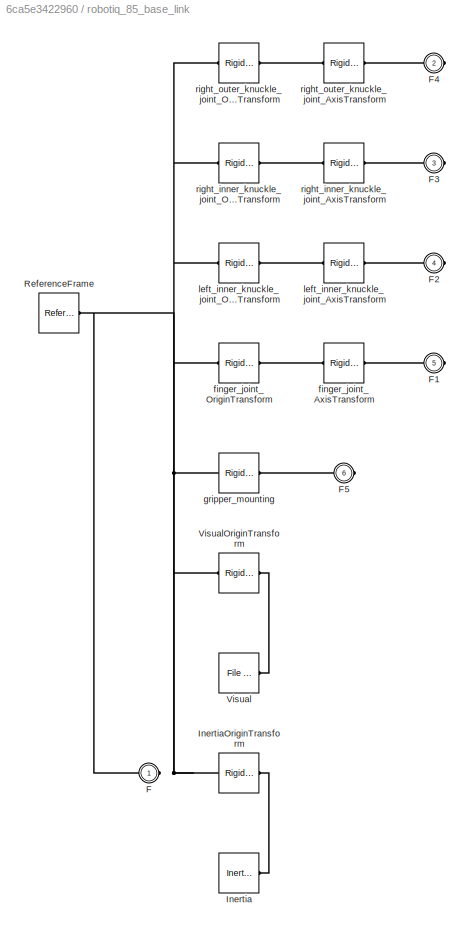
BLOCK [SubSystem] robotiq_85_base_link
  Ports = [0, 0, 0, 0, 0, 1, 5]
  RequestExecContextInheritance = off
BLOCK [PMIOPort] robotiq_85_base_link/F
  Side = Left
BLOCK [PMIOPort] robotiq_85_base_link/F1
  Port = 5
  Side = Right
BLOCK [PMIOPort] robotiq_85_base_link/F2
  Port = 4
  Side = Right
BLOCK [PMIOPort] robotiq_85_base_link/F3
  Port = 3
  Side = Right
BLOCK [PMIOPort] robotiq_85_base_link/F4
  Port = 2
  Side = Right
BLOCK [PMIOPort] robotiq_85_base_link/F5
  Port = 6
  Side = Right
BLOCK [Reference] robotiq_85_base_link/Inertia  REF=sm_lib/Body Elements/Inertia
  Ports = [0, 0, 0, 0, 0, 0, 1]
  SourceBlock = sm_lib/Body Elements/Inertia
  SourceProductBaseCode = MS
  SourceType = Inertia
BLOCK [Reference] robotiq_85_base_link/InertiaOriginTransform  REF=sm_lib/Frames and
Transforms/Rigid
Transform
  Ports = [0, 0, 0, 0, 0, 1, 1]
  SourceBlock = sm_lib/Frames and\nTransforms/Rigid\nTransform
  SourceProductBaseCode = MS
  SourceType = Rigid\nTransform
BLOCK [Reference] robotiq_85_base_link/ReferenceFrame  REF=sm_lib/Frames and
Transforms/Reference
Frame
  Ports = [0, 0, 0, 0, 0, 0, 1]
  SourceBlock = sm_lib/Frames and\nTransforms/Reference\nFrame
  SourceProductBaseCode = MS
  SourceType = Reference\nFrame
BLOCK [Reference] robotiq_85_base_link/Visual  REF=sm_lib/Body Elements/File Solid
  Ports = [0, 0, 0, 0, 0, 0, 1]
  SourceBlock = sm_lib/Body Elements/File Solid
  SourceProductBaseCode = MS
  SourceType = File Solid
BLOCK [Reference] robotiq_85_base_link/VisualOriginTransform  REF=sm_lib/Frames and
Transforms/Rigid
Transform
  Ports = [0, 0, 0, 0, 0, 1, 1]
  SourceBlock = sm_lib/Frames and\nTransforms/Rigid\nTransform
  SourceProductBaseCode = MS
  SourceType = Rigid\nTransform
BLOCK [Reference] robotiq_85_base_link/finger_joint_AxisTransform  REF=sm_lib/Frames and
Transforms/Rigid
Transform
  Ports = [0, 0, 0, 0, 0, 1, 1]
  SourceBlock = sm_lib/Frames and\nTransforms/Rigid\nTransform
  SourceProductBaseCode = MS
  SourceType = Rigid\nTransform
BLOCK [Reference] robotiq_85_base_link/finger_joint_OriginTransform  REF=sm_lib/Frames and
Transforms/Rigid
Transform
  Ports = [0, 0, 0, 0, 0, 1, 1]
  SourceBlock = sm_lib/Frames and\nTransforms/Rigid\nTransform
  SourceProductBaseCode = MS
  SourceType = Rigid\nTransform
BLOCK [Reference] robotiq_85_base_link/gripper_mounting  REF=sm_lib/Frames and
Transforms/Rigid
Transform
  Ports = [0, 0, 0, 0, 0, 1, 1]
  SourceBlock = sm_lib/Frames and\nTransforms/Rigid\nTransform
  SourceProductBaseCode = MS
  SourceType = Rigid\nTransform
BLOCK [Reference] robotiq_85_base_link/left_inner_knuckle_joint_AxisTransform  REF=sm_lib/Frames and
Transforms/Rigid
Transform
  Ports = [0, 0, 0, 0, 0, 1, 1]
  SourceBlock = sm_lib/Frames and\nTransforms/Rigid\nTransform
  SourceProductBaseCode = MS
  SourceType = Rigid\nTransform
BLOCK [Reference] robotiq_85_base_link/left_inner_knuckle_joint_OriginTransform  REF=sm_lib/Frames and
Transforms/Rigid
Transform
  Ports = [0, 0, 0, 0, 0, 1, 1]
  SourceBlock = sm_lib/Frames and\nTransforms/Rigid\nTransform
  SourceProductBaseCode = MS
  SourceType = Rigid\nTransform
BLOCK [Reference] robotiq_85_base_link/right_inner_knuckle_joint_AxisTransform  REF=sm_lib/Frames and
Transforms/Rigid
Transform
  Ports = [0, 0, 0, 0, 0, 1, 1]
  SourceBlock = sm_lib/Frames and\nTransforms/Rigid\nTransform
  SourceProductBaseCode = MS
  SourceType = Rigid\nTransform
BLOCK [Reference] robotiq_85_base_link/right_inner_knuckle_joint_OriginTransform  REF=sm_lib/Frames and
Transforms/Rigid
Transform
  Ports = [0, 0, 0, 0, 0, 1, 1]
  SourceBlock = sm_lib/Frames and\nTransforms/Rigid\nTransform
  SourceProductBaseCode = MS
  SourceType = Rigid\nTransform
BLOCK [Reference] robotiq_85_base_link/right_outer_knuckle_joint_AxisTransform  REF=sm_lib/Frames and
Transforms/Rigid
Transform
  Ports = [0, 0, 0, 0, 0, 1, 1]
  SourceBlock = sm_lib/Frames and\nTransforms/Rigid\nTransform
  SourceProductBaseCode = MS
  SourceType = Rigid\nTransform
BLOCK [Reference] robotiq_85_base_link/right_outer_knuckle_joint_OriginTransform  REF=sm_lib/Frames and
Transforms/Rigid
Transform
  Ports = [0, 0, 0, 0, 0, 1, 1]
  SourceBlock = sm_lib/Frames and\nTransforms/Rigid\nTransform
  SourceProductBaseCode = MS
  SourceType = Rigid\nTransform
BLOCK [Reference] trq1  REF=nesl_utility/PS-Simulink
Converter
  Ports = [0, 1, 0, 0, 0, 1]
  SourceBlock = nesl_utility/PS-Simulink\nConverter
  SourceProductBaseCode = PW,SS
  SourceType = PS-Simulink\nConverter
BLOCK [Reference] trq2  REF=nesl_utility/PS-Simulink
Converter
  Ports = [0, 1, 0, 0, 0, 1]
  SourceBlock = nesl_utility/PS-Simulink\nConverter
  SourceProductBaseCode = PW,SS
  SourceType = PS-Simulink\nConverter
BLOCK [Reference] trq3  REF=nesl_utility/PS-Simulink
Converter
  Ports = [0, 1, 0, 0, 0, 1]
  SourceBlock = nesl_utility/PS-Simulink\nConverter
  SourceProductBaseCode = PW,SS
  SourceType = PS-Simulink\nConverter
BLOCK [Reference] trq4  REF=nesl_utility/PS-Simulink
Converter
  Ports = [0, 1, 0, 0, 0, 1]
  SourceBlock = nesl_utility/PS-Simulink\nConverter
  SourceProductBaseCode = PW,SS
  SourceType = PS-Simulink\nConverter
BLOCK [Reference] trq5  REF=nesl_utility/PS-Simulink
Converter
  Ports = [0, 1, 0, 0, 0, 1]
  SourceBlock = nesl_utility/PS-Simulink\nConverter
  SourceProductBaseCode = PW,SS
  SourceType = PS-Simulink\nConverter
BLOCK [Reference] trq6  REF=nesl_utility/PS-Simulink
Converter
  Ports = [0, 1, 0, 0, 0, 1]
  SourceBlock = nesl_utility/PS-Simulink\nConverter
  SourceProductBaseCode = PW,SS
  SourceType = PS-Simulink\nConverter
LINE Compare To Constant:1 -> Rate Transition6:1
LINE Constant:1 -> Inverse Dynamics:4
LINE Demux1:1 -> Rate Transition10:1
LINE Demux1:2 -> Rate Transition11:1
LINE Demux1:3 -> Rate Transition12:1
LINE Demux1:4 -> Rate Transition13:1
LINE Demux2:1 -> Sum6:1
LINE Demux2:2 -> Sum7:1
LINE Demux2:3 -> Sum8:1
LINE Demux2:4 -> Sum9:1
LINE Demux2:5 -> Sum10:1
LINE Demux2:6 -> Sum11:1
NET Demux:1 -> Scope:2, Sum:1
NET Demux:2 -> Scope1:2, Sum1:1
NET Demux:3 -> Scope2:2, Sum2:1
NET Demux:4 -> Scope3:2, Sum3:1
NET Demux:5 -> Scope4:2, Sum4:1
NET Demux:6 -> Scope5:2, Sum5:1
LINE Derivative1:1 -> Inverse Dynamics:3
NET Derivative:1 -> Derivative1:1, Inverse Dynamics:2
LINE From Workspace1:1 -> Gain2:1
NET From Workspace6:1 -> Gain:1, Simulink-PS Converter7:1
NET From Workspace:1 -> Demux:1, Derivative:1, Gravity Torque:1, Inverse Dynamics:1
LINE Gain1:1 -> Compare To Constant:1
LINE Gain2:1 -> Simulink-PS Converter8:1
LINE Gain:1 -> Simulink-PS Converter6:1
LINE Gravity Torque:1 -> Sum12:2
NET Inverse Dynamics:1 -> Demux2:1, Sum12:1
NET Motor1:1 -> Scope8:1, Sum6:2
NET Motor2:1 -> Scope8:2, Sum7:2
NET Motor3:1 -> Scope8:3, Sum8:2
NET Motor4:1 -> Scope8:4, Sum9:2
NET Motor5:1 -> Scope8:5, Sum10:2
NET Motor6:1 -> Scope8:6, Sum11:2
LINE PS-Simulink Converter10:1 -> Scope7:1
LINE PS-Simulink Converter11:1 -> Scope7:2
LINE PS-Simulink Converter12:1 -> Scope7:3
LINE PS-Simulink Converter1:1 -> Rate Transition7:1
LINE PS-Simulink Converter2:1 -> Rate Transition8:1
LINE PS-Simulink Converter3:1 -> Rate Transition9:1
NET PS-Simulink Converter4:1 -> Scope:1, Sum:2
NET PS-Simulink Converter5:1 -> Scope1:1, Sum1:2
NET PS-Simulink Converter6:1 -> Scope2:1, Sum2:2
NET PS-Simulink Converter7:1 -> Scope3:1, Sum3:2
NET PS-Simulink Converter8:1 -> Scope4:1, Sum4:2
NET PS-Simulink Converter9:1 -> Scope5:1, Sum5:2
LINE PS-Simulink Converter:1 -> Demux1:1
LINE Rate Transition10:1 -> EndEffectorPose:4
LINE Rate Transition11:1 -> EndEffectorPose:5
LINE Rate Transition12:1 -> EndEffectorPose:6
LINE Rate Transition13:1 -> EndEffectorPose:7
LINE Rate Transition1:1 -> AAngles:2
LINE Rate Transition2:1 -> AAngles:3
LINE Rate Transition3:1 -> AAngles:4
LINE Rate Transition4:1 -> AAngles:5
LINE Rate Transition5:1 -> AAngles:6
LINE Rate Transition6:1 -> AAngles:7
LINE Rate Transition7:1 -> EndEffectorPose:1
LINE Rate Transition8:1 -> EndEffectorPose:2
LINE Rate Transition9:1 -> EndEffectorPose:3
LINE Rate Transition:1 -> AAngles:1
LINE Sum10:1 -> Simulink-PS Converter4:1
LINE Sum11:1 -> Simulink-PS Converter5:1
LINE Sum12:1 -> Scope6:1
LINE Sum1:1 -> Motor2:1
LINE Sum2:1 -> Motor3:1
LINE Sum3:1 -> Motor4:1
LINE Sum4:1 -> Motor5:1
LINE Sum5:1 -> Motor6:1
LINE Sum6:1 -> Simulink-PS Converter:1
LINE Sum7:1 -> Simulink-PS Converter1:1
LINE Sum8:1 -> Simulink-PS Converter2:1
LINE Sum9:1 -> Simulink-PS Converter3:1
LINE Sum:1 -> Motor1:1
LINE g1:1 -> Gain1:1
LINE q1:1 -> Rate Transition:1
LINE q2:1 -> Rate Transition1:1
LINE q3:1 -> Rate Transition2:1
LINE q4:1 -> Rate Transition3:1
LINE q5:1 -> Rate Transition4:1
LINE q6:1 -> Rate Transition5:1
LINE trq1:1 -> ATorques:1
LINE trq2:1 -> ATorques:2
LINE trq3:1 -> ATorques:3
LINE trq4:1 -> ATorques:4
LINE trq5:1 -> ATorques:5
LINE trq6:1 -> ATorques:6
PLINE Actuator1:LConn1 -- Base_Link:RConn1
PLINE Actuator1:LConn2 -- Simulink-PS Converter:RConn1
PLINE Actuator1:RConn1 -- Shoulder_Link:LConn1
PNET net1: Actuator1:RConn2 -- PS-Simulink Converter4:LConn1 -- q1:LConn1
PLINE Actuator1:RConn3 -- trq1:LConn1
PLINE Actuator2:LConn1 -- Shoulder_Link:RConn1
PLINE Actuator2:LConn2 -- Simulink-PS Converter1:RConn1
PLINE Actuator2:RConn1 -- Bicep_Link:LConn1
PNET net2: Actuator2:RConn2 -- PS-Simulink Converter5:LConn1 -- q2:LConn1
PLINE Actuator2:RConn3 -- trq2:LConn1
PLINE Actuator3:LConn1 -- Bicep_Link:RConn1
PLINE Actuator3:LConn2 -- Simulink-PS Converter2:RConn1
PLINE Actuator3:RConn1 -- ForeArm_Link:LConn1
PNET net3: Actuator3:RConn2 -- PS-Simulink Converter6:LConn1 -- q3:LConn1
PLINE Actuator3:RConn3 -- trq3:LConn1
PLINE Actuator4:LConn1 -- ForeArm_Link:RConn1
PLINE Actuator4:LConn2 -- Simulink-PS Converter3:RConn1
PLINE Actuator4:RConn1 -- SphericalWrist1_Link:LConn1
PNET net4: Actuator4:RConn2 -- PS-Simulink Converter7:LConn1 -- q4:LConn1
PLINE Actuator4:RConn3 -- trq4:LConn1
PLINE Actuator5:LConn1 -- SphericalWrist1_Link:RConn1
PLINE Actuator5:LConn2 -- Simulink-PS Converter4:RConn1
PLINE Actuator5:RConn1 -- SphericalWrist2_Link:LConn1
PNET net5: Actuator5:RConn2 -- PS-Simulink Converter8:LConn1 -- q5:LConn1
PLINE Actuator5:RConn3 -- trq5:LConn1
PLINE Actuator6:LConn1 -- SphericalWrist2_Link:RConn1
PLINE Actuator6:LConn2 -- Simulink-PS Converter5:RConn1
PLINE Actuator6:RConn1 -- Bracelet_Link:LConn1
PNET net6: Actuator6:RConn2 -- PS-Simulink Converter9:LConn1 -- q6:LConn1
PLINE Actuator6:RConn3 -- trq6:LConn1
PLINE Base_Link/Actuator1_AxisTransform:LConn1 -- Base_Link/Actuator1_OriginTransform:RConn1
PLINE Base_Link/Actuator1_AxisTransform:RConn1 -- Base_Link/F1:RConn1
PNET net7: Base_Link/Actuator1_OriginTransform:LConn1 -- Base_Link/F:RConn1 -- Base_Link/InertiaOriginTransform:LConn1 -- Base_Link/ReferenceFrame:RConn1 -- Base_Link/VisualOriginTransform:LConn1
PLINE Base_Link/Inertia:RConn1 -- Base_Link/InertiaOriginTransform:RConn1
PLINE Base_Link/Visual:RConn1 -- Base_Link/VisualOriginTransform:RConn1
PNET net8: Base_Link:LConn1 -- MechanismConfiguration:RConn1 -- Solver Configuration:RConn1 -- World:RConn1
PNET net9: Bicep_Link/Actuator2_AxisInvTransform:LConn1 -- Bicep_Link/Actuator3_OriginTransform:LConn1 -- Bicep_Link/InertiaOriginTransform:LConn1 -- Bicep_Link/ReferenceFrame:RConn1 -- Bicep_Link/VisualOriginTransform:LConn1
PLINE Bicep_Link/Actuator2_AxisInvTransform:RConn1 -- Bicep_Link/F:RConn1
PLINE Bicep_Link/Actuator3_AxisTransform:LConn1 -- Bicep_Link/Actuator3_OriginTransform:RConn1
PLINE Bicep_Link/Actuator3_AxisTransform:RConn1 -- Bicep_Link/F1:RConn1
PLINE Bicep_Link/Inertia:RConn1 -- Bicep_Link/InertiaOriginTransform:RConn1
PLINE Bicep_Link/Visual:RConn1 -- Bicep_Link/VisualOriginTransform:RConn1
PNET net10: Bracelet_Link/Actuator6_AxisInvTransform:LConn1 -- Bracelet_Link/EndEffector_OriginTransform:LConn1 -- Bracelet_Link/InertiaOriginTransform:LConn1 -- Bracelet_Link/ReferenceFrame:RConn1 -- Bracelet_Link/VisualOriginTransform:LConn1
PLINE Bracelet_Link/Actuator6_AxisInvTransform:RConn1 -- Bracelet_Link/F:RConn1
PLINE Bracelet_Link/EndEffector_OriginTransform:RConn1 -- Bracelet_Link/F1:RConn1
PLINE Bracelet_Link/Inertia:RConn1 -- Bracelet_Link/InertiaOriginTransform:RConn1
PLINE Bracelet_Link/Visual:RConn1 -- Bracelet_Link/VisualOriginTransform:RConn1
PNET net11: Bracelet_Link:RConn1 -- EndEffector:LConn1 -- Transform Sensor:RConn1 -- gripper_mounting:LConn1
PNET net12: ForeArm_Link/Actuator3_AxisInvTransform:LConn1 -- ForeArm_Link/Actuator4_OriginTransform:LConn1 -- ForeArm_Link/InertiaOriginTransform:LConn1 -- ForeArm_Link/ReferenceFrame:RConn1 -- ForeArm_Link/VisualOriginTransform:LConn1
PLINE ForeArm_Link/Actuator3_AxisInvTransform:RConn1 -- ForeArm_Link/F:RConn1
PLINE ForeArm_Link/Actuator4_AxisTransform:LConn1 -- ForeArm_Link/Actuator4_OriginTransform:RConn1
PLINE ForeArm_Link/Actuator4_AxisTransform:RConn1 -- ForeArm_Link/F1:RConn1
PLINE ForeArm_Link/Inertia:RConn1 -- ForeArm_Link/InertiaOriginTransform:RConn1
PLINE ForeArm_Link/Visual:RConn1 -- ForeArm_Link/VisualOriginTransform:RConn1
PLINE PS-Simulink Converter10:LConn1 -- Transform Sensor:RConn6
PLINE PS-Simulink Converter11:LConn1 -- Transform Sensor:RConn7
PLINE PS-Simulink Converter12:LConn1 -- Transform Sensor:RConn8
PLINE PS-Simulink Converter1:LConn1 -- Transform Sensor:RConn3
PLINE PS-Simulink Converter2:LConn1 -- Transform Sensor:RConn4
PLINE PS-Simulink Converter3:LConn1 -- Transform Sensor:RConn5
PLINE PS-Simulink Converter:LConn1 -- Transform Sensor:RConn2
PLINE Revolute Joint1:LConn1 -- left_outer_finger:LConn2
PLINE Revolute Joint1:RConn1 -- left_inner_finger:LConn2
PLINE Revolute Joint:LConn1 -- right_outer_finger:LConn2
PLINE Revolute Joint:RConn1 -- right_inner_finger:LConn2
PNET net13: Shoulder_Link/Actuator1_AxisInvTransform:LConn1 -- Shoulder_Link/Actuator2_OriginTransform:LConn1 -- Shoulder_Link/InertiaOriginTransform:LConn1 -- Shoulder_Link/ReferenceFrame:RConn1 -- Shoulder_Link/VisualOriginTransform:LConn1
PLINE Shoulder_Link/Actuator1_AxisInvTransform:RConn1 -- Shoulder_Link/F:RConn1
PLINE Shoulder_Link/Actuator2_AxisTransform:LConn1 -- Shoulder_Link/Actuator2_OriginTransform:RConn1
PLINE Shoulder_Link/Actuator2_AxisTransform:RConn1 -- Shoulder_Link/F1:RConn1
PLINE Shoulder_Link/Inertia:RConn1 -- Shoulder_Link/InertiaOriginTransform:RConn1
PLINE Shoulder_Link/Visual:RConn1 -- Shoulder_Link/VisualOriginTransform:RConn1
PLINE Simulink-PS Converter6:RConn1 -- right_outer_knuckle_joint:LConn2
PLINE Simulink-PS Converter7:RConn1 -- left_outer_knuckle_joint:LConn2
PLINE Simulink-PS Converter8:RConn1 -- Variable Brick Solid:LConn1
PNET net14: SphericalWrist1_Link/Actuator4_AxisInvTransform:LConn1 -- SphericalWrist1_Link/Actuator5_OriginTransform:LConn1 -- SphericalWrist1_Link/InertiaOriginTransform:LConn1 -- SphericalWrist1_Link/ReferenceFrame:RConn1 -- SphericalWrist1_Link/VisualOriginTransform:LConn1
PLINE SphericalWrist1_Link/Actuator4_AxisInvTransform:RConn1 -- SphericalWrist1_Link/F:RConn1
PLINE SphericalWrist1_Link/Actuator5_AxisTransform:LConn1 -- SphericalWrist1_Link/Actuator5_OriginTransform:RConn1
PLINE SphericalWrist1_Link/Actuator5_AxisTransform:RConn1 -- SphericalWrist1_Link/F1:RConn1
PLINE SphericalWrist1_Link/Inertia:RConn1 -- SphericalWrist1_Link/InertiaOriginTransform:RConn1
PLINE SphericalWrist1_Link/Visual:RConn1 -- SphericalWrist1_Link/VisualOriginTransform:RConn1
PNET net15: SphericalWrist2_Link/Actuator5_AxisInvTransform:LConn1 -- SphericalWrist2_Link/Actuator6_OriginTransform:LConn1 -- SphericalWrist2_Link/InertiaOriginTransform:LConn1 -- SphericalWrist2_Link/ReferenceFrame:RConn1 -- SphericalWrist2_Link/VisualOriginTransform:LConn1
PLINE SphericalWrist2_Link/Actuator5_AxisInvTransform:RConn1 -- SphericalWrist2_Link/F:RConn1
PLINE SphericalWrist2_Link/Actuator6_AxisTransform:LConn1 -- SphericalWrist2_Link/Actuator6_OriginTransform:RConn1
PLINE SphericalWrist2_Link/Actuator6_AxisTransform:RConn1 -- SphericalWrist2_Link/F1:RConn1
PLINE SphericalWrist2_Link/Inertia:RConn1 -- SphericalWrist2_Link/InertiaOriginTransform:RConn1
PLINE SphericalWrist2_Link/Visual:RConn1 -- SphericalWrist2_Link/VisualOriginTransform:RConn1
PLINE Transform Sensor:LConn1 -- World Frame:RConn1
PLINE Variable Brick Solid:RConn1 -- robotiq_85_base_link:RConn5
PLINE g1:LConn1 -- right_outer_knuckle_joint:RConn2
PLINE gripper_mounting:RConn1 -- robotiq_85_base_link:LConn1
PLINE left_inner_finger/F1:RConn1 -- left_inner_finger/left_inner_finger_joint_AxisInvTransform1:RConn1
PLINE left_inner_finger/F:RConn1 -- left_inner_finger/left_inner_finger_joint_AxisInvTransform:RConn1
PLINE left_inner_finger/Inertia:RConn1 -- left_inner_finger/InertiaOriginTransform:RConn1
PNET net16: left_inner_finger/InertiaOriginTransform:LConn1 -- left_inner_finger/ReferenceFrame:RConn1 -- left_inner_finger/VisualOriginTransform:LConn1 -- left_inner_finger/left_inner_finger_joint_AxisInvTransform1:LConn1 -- left_inner_finger/left_inner_finger_joint_AxisInvTransform:LConn1
PLINE left_inner_finger/Visual:RConn1 -- left_inner_finger/VisualOriginTransform:RConn1
PLINE left_inner_finger:LConn1 -- left_inner_finger_joint:RConn1
PLINE left_inner_finger_joint:LConn1 -- left_inner_knuckle:RConn1
PLINE left_inner_knuckle/F1:RConn1 -- left_inner_knuckle/left_inner_finger_joint_AxisTransform:RConn1
PLINE left_inner_knuckle/F:RConn1 -- left_inner_knuckle/left_inner_knuckle_joint_AxisInvTransform:RConn1
PLINE left_inner_knuckle/Inertia:RConn1 -- left_inner_knuckle/InertiaOriginTransform:RConn1
PNET net17: left_inner_knuckle/InertiaOriginTransform:LConn1 -- left_inner_knuckle/ReferenceFrame:RConn1 -- left_inner_knuckle/VisualOriginTransform:LConn1 -- left_inner_knuckle/left_inner_finger_joint_OriginTransform:LConn1 -- left_inner_knuckle/left_inner_knuckle_joint_AxisInvTransform:LConn1
PLINE left_inner_knuckle/Visual:RConn1 -- left_inner_knuckle/VisualOriginTransform:RConn1
PLINE left_inner_knuckle/left_inner_finger_joint_AxisTransform:LConn1 -- left_inner_knuckle/left_inner_finger_joint_OriginTransform:RConn1
PLINE left_inner_knuckle:LConn1 -- left_inner_knuckle_joint:RConn1
PLINE left_inner_knuckle_joint:LConn1 -- robotiq_85_base_link:RConn3
PLINE left_outer_finger/F1:RConn1 -- left_outer_finger/VisualOriginTransform1:RConn1
PNET net18: left_outer_finger/F:RConn1 -- left_outer_finger/InertiaOriginTransform:LConn1 -- left_outer_finger/ReferenceFrame:RConn1 -- left_outer_finger/VisualOriginTransform1:LConn1 -- left_outer_finger/VisualOriginTransform:LConn1
PLINE left_outer_finger/Inertia:RConn1 -- left_outer_finger/InertiaOriginTransform:RConn1
PLINE left_outer_finger/Visual:RConn1 -- left_outer_finger/VisualOriginTransform:RConn1
PLINE left_outer_finger:LConn1 -- left_outer_finger_joint:RConn1
PLINE left_outer_finger_joint:LConn1 -- left_outer_knuckle:RConn1
PLINE left_outer_knuckle/F1:RConn1 -- left_outer_knuckle/left_outer_finger_joint_OriginTransform:RConn1
PLINE left_outer_knuckle/F:RConn1 -- left_outer_knuckle/finger_joint_AxisInvTransform:RConn1
PLINE left_outer_knuckle/Inertia:RConn1 -- left_outer_knuckle/InertiaOriginTransform:RConn1
PNET net19: left_outer_knuckle/InertiaOriginTransform:LConn1 -- left_outer_knuckle/ReferenceFrame:RConn1 -- left_outer_knuckle/VisualOriginTransform:LConn1 -- left_outer_knuckle/finger_joint_AxisInvTransform:LConn1 -- left_outer_knuckle/left_outer_finger_joint_OriginTransform:LConn1
PLINE left_outer_knuckle/Visual:RConn1 -- left_outer_knuckle/VisualOriginTransform:RConn1
PLINE left_outer_knuckle:LConn1 -- left_outer_knuckle_joint:RConn1
PLINE left_outer_knuckle_joint:LConn1 -- robotiq_85_base_link:RConn4
PLINE right_inner_finger/F1:RConn1 -- right_inner_finger/left_inner_finger_joint_AxisInvTransform1:RConn1
PLINE right_inner_finger/F:RConn1 -- right_inner_finger/right_inner_finger_joint_AxisInvTransform:RConn1
PLINE right_inner_finger/Inertia:RConn1 -- right_inner_finger/InertiaOriginTransform:RConn1
PNET net20: right_inner_finger/InertiaOriginTransform:LConn1 -- right_inner_finger/ReferenceFrame:RConn1 -- right_inner_finger/VisualOriginTransform:LConn1 -- right_inner_finger/left_inner_finger_joint_AxisInvTransform1:LConn1 -- right_inner_finger/right_inner_finger_joint_AxisInvTransform:LConn1
PLINE right_inner_finger/Visual:RConn1 -- right_inner_finger/VisualOriginTransform:RConn1
PLINE right_inner_finger:LConn1 -- right_inner_finger_joint:RConn1
PLINE right_inner_finger_joint:LConn1 -- right_inner_knuckle:RConn1
PLINE right_inner_knuckle/F1:RConn1 -- right_inner_knuckle/right_inner_finger_joint_AxisTransform:RConn1
PLINE right_inner_knuckle/F:RConn1 -- right_inner_knuckle/right_inner_knuckle_joint_AxisInvTransform:RConn1
PLINE right_inner_knuckle/Inertia:RConn1 -- right_inner_knuckle/InertiaOriginTransform:RConn1
PNET net21: right_inner_knuckle/InertiaOriginTransform:LConn1 -- right_inner_knuckle/ReferenceFrame:RConn1 -- right_inner_knuckle/VisualOriginTransform:LConn1 -- right_inner_knuckle/right_inner_finger_joint_OriginTransform:LConn1 -- right_inner_knuckle/right_inner_knuckle_joint_AxisInvTransform:LConn1
PLINE right_inner_knuckle/Visual:RConn1 -- right_inner_knuckle/VisualOriginTransform:RConn1
PLINE right_inner_knuckle/right_inner_finger_joint_AxisTransform:LConn1 -- right_inner_knuckle/right_inner_finger_joint_OriginTransform:RConn1
PLINE right_inner_knuckle:LConn1 -- right_inner_knuckle_joint:RConn1
PLINE right_inner_knuckle_joint:LConn1 -- robotiq_85_base_link:RConn2
PLINE right_outer_finger/F1:RConn1 -- right_outer_finger/VisualOriginTransform1:RConn1
PNET net22: right_outer_finger/F:RConn1 -- right_outer_finger/InertiaOriginTransform:LConn1 -- right_outer_finger/ReferenceFrame:RConn1 -- right_outer_finger/VisualOriginTransform1:LConn1 -- right_outer_finger/VisualOriginTransform:LConn1
PLINE right_outer_finger/Inertia:RConn1 -- right_outer_finger/InertiaOriginTransform:RConn1
PLINE right_outer_finger/Visual:RConn1 -- right_outer_finger/VisualOriginTransform:RConn1
PLINE right_outer_finger:LConn1 -- right_outer_finger_joint:RConn1
PLINE right_outer_finger_joint:LConn1 -- right_outer_knuckle:RConn1
PLINE right_outer_knuckle/F1:RConn1 -- right_outer_knuckle/right_outer_finger_joint_OriginTransform:RConn1
PLINE right_outer_knuckle/F:RConn1 -- right_outer_knuckle/right_outer_knuckle_joint_AxisInvTransform:RConn1
PLINE right_outer_knuckle/Inertia:RConn1 -- right_outer_knuckle/InertiaOriginTransform:RConn1
PNET net23: right_outer_knuckle/InertiaOriginTransform:LConn1 -- right_outer_knuckle/ReferenceFrame:RConn1 -- right_outer_knuckle/VisualOriginTransform:LConn1 -- right_outer_knuckle/right_outer_finger_joint_OriginTransform:LConn1 -- right_outer_knuckle/right_outer_knuckle_joint_AxisInvTransform:LConn1
PLINE right_outer_knuckle/Visual:RConn1 -- right_outer_knuckle/VisualOriginTransform:RConn1
PLINE right_outer_knuckle:LConn1 -- right_outer_knuckle_joint:RConn1
PLINE right_outer_knuckle_joint:LConn1 -- robotiq_85_base_link:RConn1
PLINE robotiq_85_base_link/F1:RConn1 -- robotiq_85_base_link/finger_joint_AxisTransform:RConn1
PLINE robotiq_85_base_link/F2:RConn1 -- robotiq_85_base_link/left_inner_knuckle_joint_AxisTransform:RConn1
PLINE robotiq_85_base_link/F3:RConn1 -- robotiq_85_base_link/right_inner_knuckle_joint_AxisTransform:RConn1
PLINE robotiq_85_base_link/F4:RConn1 -- robotiq_85_base_link/right_outer_knuckle_joint_AxisTransform:RConn1
PLINE robotiq_85_base_link/F5:RConn1 -- robotiq_85_base_link/gripper_mounting:RConn1
PNET net24: robotiq_85_base_link/F:RConn1 -- robotiq_85_base_link/InertiaOriginTransform:LConn1 -- robotiq_85_base_link/ReferenceFrame:RConn1 -- robotiq_85_base_link/VisualOriginTransform:LConn1 -- robotiq_85_base_link/finger_joint_OriginTransform:LConn1 -- robotiq_85_base_link/gripper_mounting:LConn1 -- robotiq_85_base_link/left_inner_knuckle_joint_OriginTransform:LConn1 -- robotiq_85_base_link/right_inner_knuckle_joint_OriginTransform:LConn1 -- robotiq_85_base_link/right_outer_knuckle_joint_OriginTransform:LConn1
PLINE robotiq_85_base_link/Inertia:RConn1 -- robotiq_85_base_link/InertiaOriginTransform:RConn1
PLINE robotiq_85_base_link/Visual:RConn1 -- robotiq_85_base_link/VisualOriginTransform:RConn1
PLINE robotiq_85_base_link/finger_joint_AxisTransform:LConn1 -- robotiq_85_base_link/finger_joint_OriginTransform:RConn1
PLINE robotiq_85_base_link/left_inner_knuckle_joint_AxisTransform:LConn1 -- robotiq_85_base_link/left_inner_knuckle_joint_OriginTransform:RConn1
PLINE robotiq_85_base_link/right_inner_knuckle_joint_AxisTransform:LConn1 -- robotiq_85_base_link/right_inner_knuckle_joint_OriginTransform:RConn1
PLINE robotiq_85_base_link/right_outer_knuckle_joint_AxisTransform:LConn1 -- robotiq_85_base_link/right_outer_knuckle_joint_OriginTransform:RConn1
note: NET lines group one-source signal fan-out (src -> all destinations, sorted); 1:1 wires keep LINE; PNET lines group multi-terminal physical nets as a canonical sorted terminal list (undirected conserving connections); 2-terminal nets keep the pairwise PLINE form
